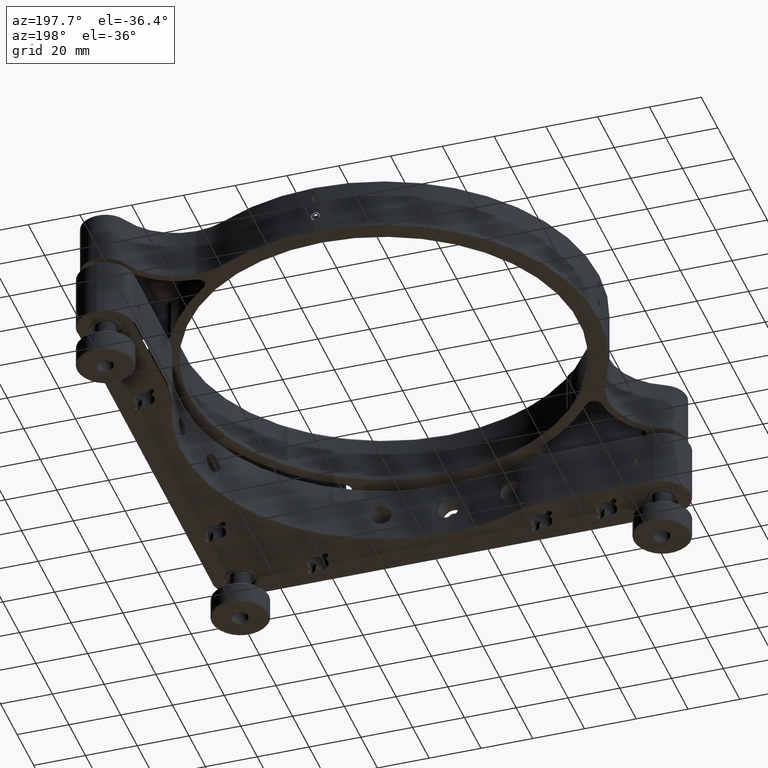
[diagram: clean part render]
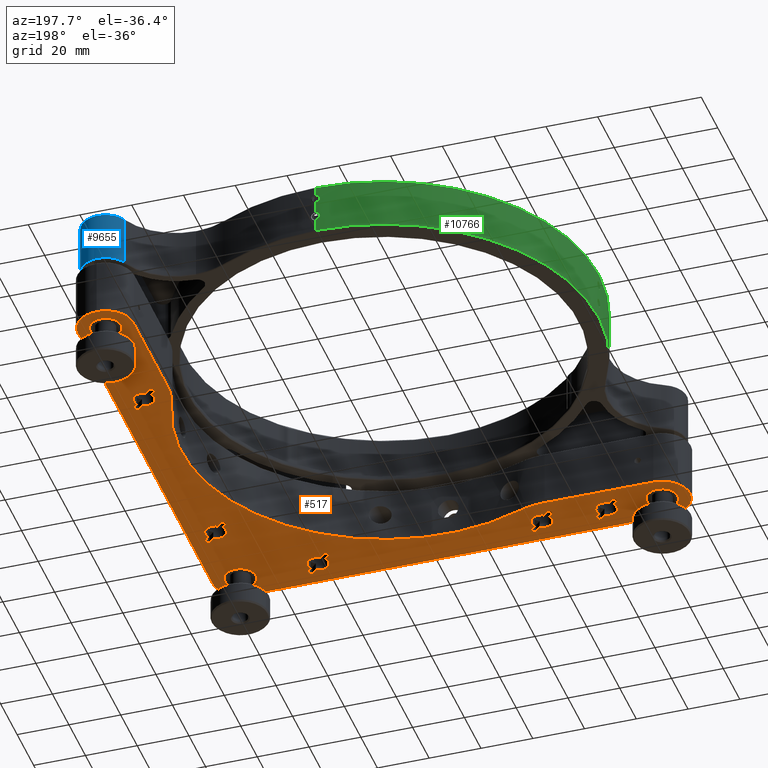
[diagram: same view with three faces highlighted in distinct colors, each labeled with its STEP entity id]
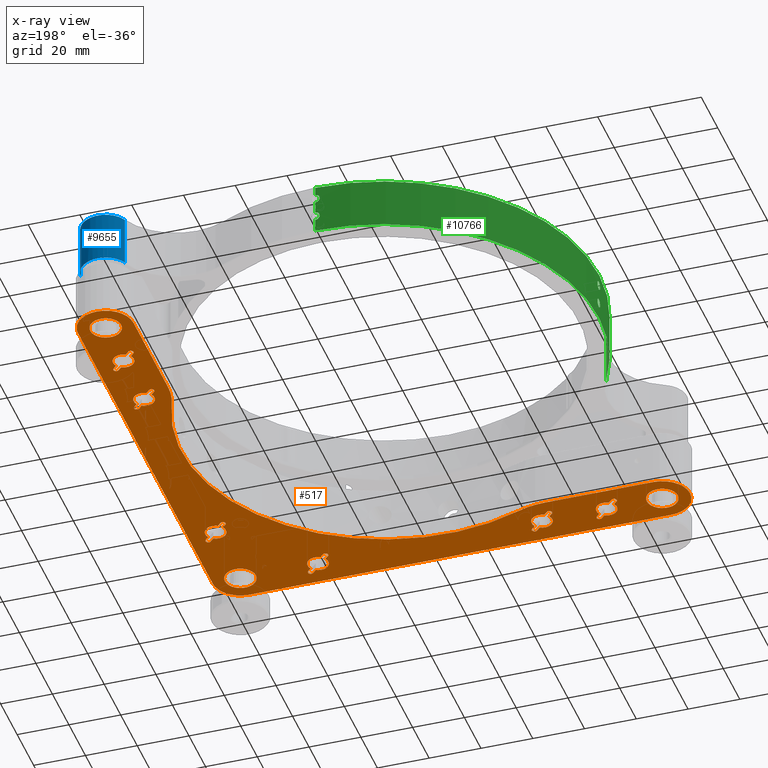
[diagram: x-ray of the same camera — body ghosted, the three highlighted faces saturated]
A machine part, auxiliary view with three faces highlighted in distinct colors.
The next image is the same camera in x-ray (body ghosted, the three faces saturated) — at least one of them is partly hidden behind the body in this view.
Their STEP definitions:

[orange] entity #517 — the highlighted planar face has unit normal (-0, 0, 1).
#14 = DIRECTION ( 'NONE',  ( 1.000000000000000000, 0.000000000000000000, 0.000000000000000000 ) ) ;
#23 = VERTEX_POINT ( 'NONE', #1847 ) ;
#32 = AXIS2_PLACEMENT_3D ( 'NONE', #8472, #5480, #1498 ) ;
#60 = VECTOR ( 'NONE', #2194, 1000.000000000000000 ) ;
#78 = DIRECTION ( 'NONE',  ( -0.7071067811865460184, 0.7071067811865490160, -0.000000000000000000 ) ) ;
#105 = CARTESIAN_POINT ( 'NONE',  ( -1.126675055215564941E-14, -92.00000000000000000, -11.00000000000000000 ) ) ;
#112 = AXIS2_PLACEMENT_3D ( 'NONE', #9817, #3949, #5887 ) ;
#117 = LINE ( 'NONE', #9943, #4166 ) ;
#120 = DIRECTION ( 'NONE',  ( -1.000000000000000000, 0.000000000000000000, 0.000000000000000000 ) ) ;
#143 = EDGE_CURVE ( 'NONE', #13025, #10785, #1864, .T. ) ;
#144 = EDGE_CURVE ( 'NONE', #7044, #7319, #3149, .T. ) ;
#184 = EDGE_CURVE ( 'NONE', #7767, #4507, #4839, .T. ) ;
#198 = VERTEX_POINT ( 'NONE', #8805 ) ;
#213 = VERTEX_POINT ( 'NONE', #12952 ) ;
#216 = LINE ( 'NONE', #414, #12917 ) ;
#229 = CARTESIAN_POINT ( 'NONE',  ( 78.07053211124521397, -46.58560787075347065, -11.00000000000000000 ) ) ;
#243 = ORIENTED_EDGE ( 'NONE', *, *, #6173, .T. ) ;
#263 = EDGE_CURVE ( 'NONE', #12680, #2368, #3779, .T. ) ;
#270 = EDGE_CURVE ( 'NONE', #11952, #2296, #11849, .T. ) ;
#286 = CIRCLE ( 'NONE', #8058, 4.000000000000000000 ) ;
#304 = VERTEX_POINT ( 'NONE', #8078 ) ;
#306 = ORIENTED_EDGE ( 'NONE', *, *, #3301, .F. ) ;
#309 = VERTEX_POINT ( 'NONE', #4001 ) ;
#323 = DIRECTION ( 'NONE',  ( 0.000000000000000000, 1.000000000000000000, 0.000000000000000000 ) ) ;
#337 = EDGE_CURVE ( 'NONE', #4315, #2716, #6248, .T. ) ;
#351 = ORIENTED_EDGE ( 'NONE', *, *, #12106, .T. ) ;
#368 = CIRCLE ( 'NONE', #7538, 1.049999999999974509 ) ;
#375 = EDGE_CURVE ( 'NONE', #9537, #4086, #3275, .T. ) ;
#402 = CARTESIAN_POINT ( 'NONE',  ( 72.86250000000008242, 28.66960226005932100, -11.00000000000000000 ) ) ;
#406 = CARTESIAN_POINT ( 'NONE',  ( 81.49999999999998579, 81.50000000000004263, -11.00000000000000000 ) ) ;
#414 = CARTESIAN_POINT ( 'NONE',  ( -0.5000000000000156541, -92.50000000000000000, -11.00000000000000000 ) ) ;
#421 = VERTEX_POINT ( 'NONE', #12227 ) ;
#453 = CARTESIAN_POINT ( 'NONE',  ( 81.50000000000000000, -81.49999999999998579, -11.00000000000000000 ) ) ;
#496 = AXIS2_PLACEMENT_3D ( 'NONE', #3380, #1657, #2582 ) ;
#517 = ADVANCED_FACE ( 'NONE', ( #631, #4660, #8459, #4527, #8526, #12544, #1548, #5586, #563, #4594 ), #2608, .F. ) ;
#524 = EDGE_CURVE ( 'NONE', #6403, #13016, #845, .T. ) ;
#529 = CIRCLE ( 'NONE', #4310, 1.049999999999974509 ) ;
#563 = FACE_BOUND ( 'NONE', #3726, .T. ) ;
#574 = CIRCLE ( 'NONE', #11104, 1.050000000000009148 ) ;
#591 = EDGE_CURVE ( 'NONE', #2296, #6533, #10036, .T. ) ;
#631 = FACE_OUTER_BOUND ( 'NONE', #3778, .T. ) ;
#646 = DIRECTION ( 'NONE',  ( 0.000000000000000000, 0.000000000000000000, -1.000000000000000000 ) ) ;
#648 = CARTESIAN_POINT ( 'NONE',  ( -39.17193000900062572, -77.32806999099933876, -11.00000000000000000 ) ) ;
#684 = AXIS2_PLACEMENT_3D ( 'NONE', #5248, #9246, #3829 ) ;
#699 = VERTEX_POINT ( 'NONE', #9751 ) ;
#704 = ORIENTED_EDGE ( 'NONE', *, *, #11034, .T. ) ;
#715 = CARTESIAN_POINT ( 'NONE',  ( -81.50000000000000000, -81.50000000000000000, -11.00000000000000000 ) ) ;
#784 = VERTEX_POINT ( 'NONE', #3626 ) ;
#787 = CARTESIAN_POINT ( 'NONE',  ( -64.17193000900061861, -77.32806999099933876, -11.00000000000000000 ) ) ;
#806 = VECTOR ( 'NONE', #3471, 1000.000000000000114 ) ;
#807 = VECTOR ( 'NONE', #11216, 1000.000000000000114 ) ;
#838 = ORIENTED_EDGE ( 'NONE', *, *, #337, .T. ) ;
#845 = CIRCLE ( 'NONE', #2525, 4.000000000000000000 ) ;
#864 = DIRECTION ( 'NONE',  ( -1.000000000000000000, 0.000000000000000000, 0.000000000000000000 ) ) ;
#872 = DIRECTION ( 'NONE',  ( 0.000000000000000000, -1.000000000000000000, 0.000000000000000000 ) ) ;
#911 = DIRECTION ( 'NONE',  ( -1.000000000000000000, 0.000000000000000000, 0.000000000000000000 ) ) ;
#919 = EDGE_CURVE ( 'NONE', #11386, #2433, #10487, .T. ) ;
#933 = CARTESIAN_POINT ( 'NONE',  ( 81.49999999999995737, 35.00000000000004263, -11.00000000000000000 ) ) ;
#947 = VERTEX_POINT ( 'NONE', #7186 ) ;
#952 = CARTESIAN_POINT ( 'NONE',  ( 81.49999999999995737, 35.00000000000004263, -11.00000000000000000 ) ) ;
#956 = ORIENTED_EDGE ( 'NONE', *, *, #1319, .F. ) ;
#996 = EDGE_CURVE ( 'NONE', #1370, #6724, #368, .T. ) ;
#1007 = VECTOR ( 'NONE', #4202, 1000.000000000000000 ) ;
#1009 = CIRCLE ( 'NONE', #1633, 4.000000000000003553 ) ;
#1075 = CARTESIAN_POINT ( 'NONE',  ( -64.91439212924652225, -78.07053211124519976, -11.00000000000000000 ) ) ;
#1076 = EDGE_CURVE ( 'NONE', #12276, #8375, #2478, .T. ) ;
#1105 = DIRECTION ( 'NONE',  ( -0.7071067811865457964, 0.7071067811865492381, 0.000000000000000000 ) ) ;
#1110 = AXIS2_PLACEMENT_3D ( 'NONE', #5638, #9643, #2594 ) ;
#1124 = DIRECTION ( 'NONE',  ( 0.000000000000000000, -1.000000000000000000, 0.000000000000000000 ) ) ;
#1218 = AXIS2_PLACEMENT_3D ( 'NONE', #453, #3479, #8848 ) ;
#1236 = DIRECTION ( 'NONE',  ( -0.000000000000000000, 0.000000000000000000, -1.000000000000000000 ) ) ;
#1240 = CARTESIAN_POINT ( 'NONE',  ( 77.50000000000000000, -51.49999999999997158, -11.00000000000000000 ) ) ;
#1256 = CARTESIAN_POINT ( 'NONE',  ( 56.41439212924649382, -84.92946788875475761, -11.00000000000000000 ) ) ;
#1278 = CARTESIAN_POINT ( 'NONE',  ( 92.50000000000000000, 0.5000000000000567324, -11.00000000000000000 ) ) ;
#1308 = CARTESIAN_POINT ( 'NONE',  ( -39.54427897939210368, -70.80000000000011084, -11.00000000000000000 ) ) ;
#1319 = EDGE_CURVE ( 'NONE', #4647, #947, #3808, .T. ) ;
#1348 = EDGE_CURVE ( 'NONE', #10140, #4662, #1645, .T. ) ;
#1370 = VERTEX_POINT ( 'NONE', #9880 ) ;
#1375 = ORIENTED_EDGE ( 'NONE', *, *, #4126, .T. ) ;
#1386 = CARTESIAN_POINT ( 'NONE',  ( -81.50000000000000000, -81.50000000000000000, -11.00000000000000000 ) ) ;
#1409 = AXIS2_PLACEMENT_3D ( 'NONE', #952, #8850, #10919 ) ;
#1418 = VECTOR ( 'NONE', #3331, 1000.000000000000000 ) ;
#1434 = ORIENTED_EDGE ( 'NONE', *, *, #591, .T. ) ;
#1443 = DIRECTION ( 'NONE',  ( 1.000000000000000000, 0.000000000000000000, 0.000000000000000000 ) ) ;
#1461 = AXIS2_PLACEMENT_3D ( 'NONE', #4062, #11985, #6055 ) ;
#1490 = ORIENTED_EDGE ( 'NONE', *, *, #10394, .F. ) ;
#1498 = DIRECTION ( 'NONE',  ( 1.000000000000000000, 3.504491870660227209E-15, 0.000000000000000000 ) ) ;
#1523 = CARTESIAN_POINT ( 'NONE',  ( 78.02829805885160397, -49.51322229934333308, -11.00000000000000000 ) ) ;
#1530 = CARTESIAN_POINT ( 'NONE',  ( -56.00000000000000711, -81.49999999999997158, -11.00000000000000000 ) ) ;
#1548 = FACE_BOUND ( 'NONE', #11294, .T. ) ;
#1551 = DIRECTION ( 'NONE',  ( 1.000000000000000000, 0.000000000000000000, 0.000000000000000000 ) ) ;
#1563 = EDGE_CURVE ( 'NONE', #7282, #4315, #8376, .T. ) ;
#1574 = CARTESIAN_POINT ( 'NONE',  ( 56.41439212924649382, -84.92946788875475761, -11.00000000000000000 ) ) ;
#1609 = DIRECTION ( 'NONE',  ( -0.000000000000000000, 0.000000000000000000, 1.000000000000000000 ) ) ;
#1611 = ORIENTED_EDGE ( 'NONE', *, *, #2620, .F. ) ;
#1626 = ORIENTED_EDGE ( 'NONE', *, *, #375, .T. ) ;
#1633 = AXIS2_PLACEMENT_3D ( 'NONE', #5541, #12823, #7700 ) ;
#1645 = CIRCLE ( 'NONE', #7965, 6.000000000000005329 ) ;
#1657 = DIRECTION ( 'NONE',  ( -0.000000000000000000, 0.000000000000000000, 1.000000000000000000 ) ) ;
#1680 = CARTESIAN_POINT ( 'NONE',  ( 92.00000000000000000, 5.212295785836140063E-14, -11.00000000000000000 ) ) ;
#1690 = ORIENTED_EDGE ( 'NONE', *, *, #5780, .T. ) ;
#1695 = ORIENTED_EDGE ( 'NONE', *, *, #8884, .T. ) ;
#1716 = CARTESIAN_POINT ( 'NONE',  ( -56.57053211124526371, -86.41439212924649382, -11.00000000000000000 ) ) ;
#1727 = CARTESIAN_POINT ( 'NONE',  ( -31.52829805885163594, -83.48677770065664561, -11.00000000000000000 ) ) ;
#1793 = DIRECTION ( 'NONE',  ( -0.000000000000000000, 0.000000000000000000, 1.000000000000000000 ) ) ;
#1809 = DIRECTION ( 'NONE',  ( -0.000000000000000000, 0.000000000000000000, 1.000000000000000000 ) ) ;
#1822 = CARTESIAN_POINT ( 'NONE',  ( -64.17193000900061861, -77.32806999099933876, -11.00000000000000000 ) ) ;
#1830 = VERTEX_POINT ( 'NONE', #9502 ) ;
#1847 = CARTESIAN_POINT ( 'NONE',  ( -58.01322229934338282, -84.97170194114838182, -11.00000000000000000 ) ) ;
#1856 = VECTOR ( 'NONE', #4555, 1000.000000000000000 ) ;
#1864 = CIRCLE ( 'NONE', #10931, 3.999999999999996447 ) ;
#1869 = ORIENTED_EDGE ( 'NONE', *, *, #7913, .T. ) ;
#1895 = CARTESIAN_POINT ( 'NONE',  ( 79.51322229934329755, 38.47170194114841735, -11.00000000000000000 ) ) ;
#1938 = ORIENTED_EDGE ( 'NONE', *, *, #4820, .T. ) ;
#1942 = VERTEX_POINT ( 'NONE', #10772 ) ;
#1945 = DIRECTION ( 'NONE',  ( 0.7071067811865457964, -0.7071067811865492381, 0.000000000000000000 ) ) ;
#1946 = EDGE_CURVE ( 'NONE', #3604, #10121, #3972, .T. ) ;
#1954 = EDGE_CURVE ( 'NONE', #6033, #1370, #12990, .T. ) ;
#1972 = ORIENTED_EDGE ( 'NONE', *, *, #3014, .F. ) ;
#1986 = AXIS2_PLACEMENT_3D ( 'NONE', #12039, #6121, #11051 ) ;
#1988 = DIRECTION ( 'NONE',  ( 0.000000000000000000, -0.000000000000000000, 1.000000000000000000 ) ) ;
#1999 = CARTESIAN_POINT ( 'NONE',  ( -40.22193000900060156, -77.32806999099933876, -11.00000000000000000 ) ) ;
#2017 = ORIENTED_EDGE ( 'NONE', *, *, #184, .F. ) ;
#2043 = VECTOR ( 'NONE', #4620, 1000.000000000000114 ) ;
#2045 = AXIS2_PLACEMENT_3D ( 'NONE', #715, #3553, #4812 ) ;
#2117 = CARTESIAN_POINT ( 'NONE',  ( 81.49999999999995737, 60.00000000000004263, -11.00000000000000000 ) ) ;
#2148 = CIRCLE ( 'NONE', #6592, 4.000000000000000000 ) ;
#2150 = VECTOR ( 'NONE', #9593, 1000.000000000000000 ) ;
#2164 = CARTESIAN_POINT ( 'NONE',  ( 70.80000000000011084, 1.661754531610481278E-14, -11.00000000000000000 ) ) ;
#2194 = DIRECTION ( 'NONE',  ( -0.7071067811865494601, 0.7071067811865454633, 0.000000000000000000 ) ) ;
#2209 = EDGE_CURVE ( 'NONE', #8375, #12276, #9386, .T. ) ;
#2217 = DIRECTION ( 'NONE',  ( 1.500301384628590126E-16, -1.000000000000000000, 0.000000000000000000 ) ) ;
#2234 = DIRECTION ( 'NONE',  ( 0.000000000000000000, 1.000000000000000000, 0.000000000000000000 ) ) ;
#2236 = CARTESIAN_POINT ( 'NONE',  ( 51.50000000000000711, -81.49999999999998579, -11.00000000000000000 ) ) ;
#2273 = VERTEX_POINT ( 'NONE', #9894 ) ;
#2296 = VERTEX_POINT ( 'NONE', #11745 ) ;
#2311 = ORIENTED_EDGE ( 'NONE', *, *, #10262, .F. ) ;
#2324 = ORIENTED_EDGE ( 'NONE', *, *, #143, .F. ) ;
#2340 = VERTEX_POINT ( 'NONE', #1716 ) ;
#2347 = ORIENTED_EDGE ( 'NONE', *, *, #9767, .T. ) ;
#2349 = ORIENTED_EDGE ( 'NONE', *, *, #11226, .T. ) ;
#2350 = CARTESIAN_POINT ( 'NONE',  ( 92.50000000000000000, -0.4999999999999519829, -11.00000000000000000 ) ) ;
#2368 = VERTEX_POINT ( 'NONE', #10885 ) ;
#2369 = LINE ( 'NONE', #4147, #7290 ) ;
#2371 = LINE ( 'NONE', #1574, #2043 ) ;
#2391 = CARTESIAN_POINT ( 'NONE',  ( -56.52829805885161107, -83.48677770065661718, -11.00000000000000000 ) ) ;
#2393 = CARTESIAN_POINT ( 'NONE',  ( -39.91439212924648672, -78.07053211124518555, -11.00000000000000000 ) ) ;
#2396 = LINE ( 'NONE', #6359, #60 ) ;
#2408 = VECTOR ( 'NONE', #12706, 1000.000000000000114 ) ;
#2428 = CARTESIAN_POINT ( 'NONE',  ( 51.50000000000000711, -81.49999999999998579, -11.00000000000000000 ) ) ;
#2433 = VERTEX_POINT ( 'NONE', #3415 ) ;
#2452 = EDGE_CURVE ( 'NONE', #3671, #2741, #6320, .T. ) ;
#2464 = DIRECTION ( 'NONE',  ( 0.000000000000000000, 1.000000000000000000, 0.000000000000000000 ) ) ;
#2478 = CIRCLE ( 'NONE', #2045, 6.000000000000005329 ) ;
#2519 = CARTESIAN_POINT ( 'NONE',  ( 86.41439212924647961, 56.57053211124530634, -11.00000000000000000 ) ) ;
#2525 = AXIS2_PLACEMENT_3D ( 'NONE', #6960, #2746, #5913 ) ;
#2526 = AXIS2_PLACEMENT_3D ( 'NONE', #2117, #5222, #1124 ) ;
#2582 = DIRECTION ( 'NONE',  ( 0.000000000000000000, 1.000000000000000000, 0.000000000000000000 ) ) ;
#2589 = CARTESIAN_POINT ( 'NONE',  ( -64.91439212924652225, -78.07053211124519976, -11.00000000000000000 ) ) ;
#2592 = VERTEX_POINT ( 'NONE', #2393 ) ;
#2594 = DIRECTION ( 'NONE',  ( -1.000000000000000000, 0.000000000000000000, 0.000000000000000000 ) ) ;
#2608 = PLANE ( 'NONE',  #6536 ) ;
#2620 = EDGE_CURVE ( 'NONE', #12640, #7218, #9151, .T. ) ;
#2645 = ORIENTED_EDGE ( 'NONE', *, *, #3412, .F. ) ;
#2646 = CARTESIAN_POINT ( 'NONE',  ( 86.41439212924650803, -54.92946788875471498, -11.00000000000000000 ) ) ;
#2672 = CARTESIAN_POINT ( 'NONE',  ( 81.50000000000000000, -51.49999999999997158, -11.00000000000000000 ) ) ;
#2709 = CIRCLE ( 'NONE', #11759, 1.050000000000009148 ) ;
#2716 = VERTEX_POINT ( 'NONE', #5705 ) ;
#2737 = ORIENTED_EDGE ( 'NONE', *, *, #9063, .T. ) ;
#2741 = VERTEX_POINT ( 'NONE', #4836 ) ;
#2746 = DIRECTION ( 'NONE',  ( -0.000000000000000000, 0.000000000000000000, -1.000000000000000000 ) ) ;
#2768 = VERTEX_POINT ( 'NONE', #5762 ) ;
#2782 = AXIS2_PLACEMENT_3D ( 'NONE', #5538, #1236, #5266 ) ;
#2785 = EDGE_CURVE ( 'NONE', #7218, #9278, #5569, .T. ) ;
#2834 = DIRECTION ( 'NONE',  ( 1.000000000000000000, 0.000000000000000000, 0.000000000000000000 ) ) ;
#2846 = CARTESIAN_POINT ( 'NONE',  ( -28.66960226005930323, -72.86250000000009663, -11.00000000000000000 ) ) ;
#2861 = ORIENTED_EDGE ( 'NONE', *, *, #10600, .F. ) ;
#2900 = CARTESIAN_POINT ( 'NONE',  ( -31.57053211124524594, -86.41439212924646540, -11.00000000000000000 ) ) ;
#2909 = ORIENTED_EDGE ( 'NONE', *, *, #1946, .T. ) ;
#2932 = EDGE_CURVE ( 'NONE', #6414, #11457, #11496, .T. ) ;
#2980 = DIRECTION ( 'NONE',  ( 0.000000000000000000, -0.000000000000000000, 1.000000000000000000 ) ) ;
#2982 = DIRECTION ( 'NONE',  ( 0.000000000000000000, 1.000000000000000000, 0.000000000000000000 ) ) ;
#2988 = CARTESIAN_POINT ( 'NONE',  ( 85.49999999999997158, 35.00000000000004263, -11.00000000000000000 ) ) ;
#3014 = EDGE_CURVE ( 'NONE', #2368, #8262, #9618, .T. ) ;
#3057 = ORIENTED_EDGE ( 'NONE', *, *, #4476, .F. ) ;
#3059 = EDGE_CURVE ( 'NONE', #10115, #784, #4627, .T. ) ;
#3073 = ORIENTED_EDGE ( 'NONE', *, *, #5473, .F. ) ;
#3102 = EDGE_CURVE ( 'NONE', #7194, #6403, #9984, .T. ) ;
#3129 = AXIS2_PLACEMENT_3D ( 'NONE', #3324, #7274, #10314 ) ;
#3138 = CARTESIAN_POINT ( 'NONE',  ( 83.48677770065667403, -54.97170194114836050, -11.00000000000000000 ) ) ;
#3149 = CIRCLE ( 'NONE', #9024, 1.049999999999988498 ) ;
#3163 = ORIENTED_EDGE ( 'NONE', *, *, #11461, .T. ) ;
#3183 = EDGE_CURVE ( 'NONE', #6724, #11952, #529, .T. ) ;
#3193 = CARTESIAN_POINT ( 'NONE',  ( -33.01322229934334729, -84.97170194114835340, -11.00000000000000000 ) ) ;
#3259 = DIRECTION ( 'NONE',  ( -0.000000000000000000, 0.000000000000000000, 1.000000000000000000 ) ) ;
#3275 = LINE ( 'NONE', #12165, #4631 ) ;
#3289 = AXIS2_PLACEMENT_3D ( 'NONE', #406, #5497, #9484 ) ;
#3298 = DIRECTION ( 'NONE',  ( 0.000000000000000000, -1.000000000000000000, 0.000000000000000000 ) ) ;
#3301 = EDGE_CURVE ( 'NONE', #421, #3921, #12718, .T. ) ;
#3306 = CARTESIAN_POINT ( 'NONE',  ( 87.50000000000000000, 81.50000000000004263, -11.00000000000000000 ) ) ;
#3324 = CARTESIAN_POINT ( 'NONE',  ( 85.67193000900061861, 30.82806999099942757, -11.00000000000000000 ) ) ;
#3331 = DIRECTION ( 'NONE',  ( -0.7071067811865445751, -0.7071067811865504593, 0.000000000000000000 ) ) ;
#3343 = VECTOR ( 'NONE', #78, 1000.000000000000227 ) ;
#3351 = DIRECTION ( 'NONE',  ( 0.7071067811865450192, -0.7071067811865500152, 0.000000000000000000 ) ) ;
#3354 = CARTESIAN_POINT ( 'NONE',  ( -36.98677770065665982, -78.02829805885160397, -11.00000000000000000 ) ) ;
#3378 = ORIENTED_EDGE ( 'NONE', *, *, #11307, .T. ) ;
#3380 = CARTESIAN_POINT ( 'NONE',  ( 81.50000000000000000, -51.49999999999997158, -11.00000000000000000 ) ) ;
#3387 = DIRECTION ( 'NONE',  ( -0.000000000000000000, 0.000000000000000000, -1.000000000000000000 ) ) ;
#3412 = EDGE_CURVE ( 'NONE', #8516, #421, #3895, .T. ) ;
#3415 = CARTESIAN_POINT ( 'NONE',  ( 77.49999999999995737, 60.00000000000004263, -11.00000000000000000 ) ) ;
#3422 = CARTESIAN_POINT ( 'NONE',  ( 77.32806999099932455, 39.17193000900066124, -11.00000000000000000 ) ) ;
#3447 = DIRECTION ( 'NONE',  ( 0.000000000000000000, 1.000000000000000000, 0.000000000000000000 ) ) ;
#3471 = DIRECTION ( 'NONE',  ( 0.7071067811865490160, -0.7071067811865460184, 0.000000000000000000 ) ) ;
#3479 = DIRECTION ( 'NONE',  ( 0.000000000000000000, 0.000000000000000000, 1.000000000000000000 ) ) ;
#3488 = CARTESIAN_POINT ( 'NONE',  ( 85.67193000900060440, 55.82806999099941692, -11.00000000000000000 ) ) ;
#3491 = LINE ( 'NONE', #10620, #1856 ) ;
#3553 = DIRECTION ( 'NONE',  ( 0.000000000000000000, 0.000000000000000000, 1.000000000000000000 ) ) ;
#3574 = VECTOR ( 'NONE', #6929, 1000.000000000000114 ) ;
#3594 = DIRECTION ( 'NONE',  ( 0.000000000000000000, -0.000000000000000000, 1.000000000000000000 ) ) ;
#3604 = VERTEX_POINT ( 'NONE', #7831 ) ;
#3610 = CARTESIAN_POINT ( 'NONE',  ( 81.49999999999998579, 81.50000000000004263, -11.00000000000000000 ) ) ;
#3618 = ORIENTED_EDGE ( 'NONE', *, *, #9617, .T. ) ;
#3626 = CARTESIAN_POINT ( 'NONE',  ( 84.97170194114836761, 58.01322229934341124, -11.00000000000000000 ) ) ;
#3639 = CARTESIAN_POINT ( 'NONE',  ( -63.42946788875473629, -76.58560787075343512, -11.00000000000000000 ) ) ;
#3650 = CIRCLE ( 'NONE', #11027, 1.049999999999974509 ) ;
#3660 = DIRECTION ( 'NONE',  ( 0.000000000000000000, -0.000000000000000000, -1.000000000000000000 ) ) ;
#3671 = VERTEX_POINT ( 'NONE', #4930 ) ;
#3705 = CIRCLE ( 'NONE', #6871, 4.000000000000010658 ) ;
#3706 = CARTESIAN_POINT ( 'NONE',  ( -39.00000000000000711, -81.49999999999997158, -11.00000000000000000 ) ) ;
#3726 = EDGE_LOOP ( 'NONE', ( #11118, #7690, #4606, #6193, #2324, #7548, #4924, #8397, #4346, #3788, #1611 ) ) ;
#3728 = AXIS2_PLACEMENT_3D ( 'NONE', #3488, #5614, #4551 ) ;
#3736 = DIRECTION ( 'NONE',  ( -0.000000000000000000, 0.000000000000000000, -1.000000000000000000 ) ) ;
#3778 = EDGE_LOOP ( 'NONE', ( #3378, #10621, #956, #4907, #3806, #7785, #1938, #8170, #3618, #4193, #704, #10557, #9647, #8146, #838, #9521, #7952, #5905 ) ) ;
#3779 = CIRCLE ( 'NONE', #1461, 1.049999999999971179 ) ;
#3788 = ORIENTED_EDGE ( 'NONE', *, *, #2785, .F. ) ;
#3806 = ORIENTED_EDGE ( 'NONE', *, *, #2452, .T. ) ;
#3808 = LINE ( 'NONE', #7898, #6495 ) ;
#3829 = DIRECTION ( 'NONE',  ( 1.000000000000000000, 0.000000000000000000, 0.000000000000000000 ) ) ;
#3848 = CIRCLE ( 'NONE', #12896, 1.049999999999988498 ) ;
#3862 = CIRCLE ( 'NONE', #8900, 6.000000000000005329 ) ;
#3863 = AXIS2_PLACEMENT_3D ( 'NONE', #5970, #9093, #12933 ) ;
#3876 = ORIENTED_EDGE ( 'NONE', *, *, #12387, .F. ) ;
#3895 = CIRCLE ( 'NONE', #5387, 4.000000000000003553 ) ;
#3909 = VERTEX_POINT ( 'NONE', #1680 ) ;
#3921 = VERTEX_POINT ( 'NONE', #10591 ) ;
#3949 = DIRECTION ( 'NONE',  ( 0.000000000000000000, -0.000000000000000000, 1.000000000000000000 ) ) ;
#3954 = ORIENTED_EDGE ( 'NONE', *, *, #9610, .F. ) ;
#3972 = LINE ( 'NONE', #8965, #12527 ) ;
#3983 = EDGE_CURVE ( 'NONE', #1942, #2340, #5025, .T. ) ;
#4001 = CARTESIAN_POINT ( 'NONE',  ( 46.58560787075350618, -78.07053211124519976, -11.00000000000000000 ) ) ;
#4035 = EDGE_LOOP ( 'NONE', ( #7422, #8580 ) ) ;
#4062 = CARTESIAN_POINT ( 'NONE',  ( -30.82806999099938849, -85.67193000900061861, -11.00000000000000000 ) ) ;
#4063 = VERTEX_POINT ( 'NONE', #1999 ) ;
#4077 = DIRECTION ( 'NONE',  ( -2.347110920353783037E-16, 1.000000000000000000, 0.000000000000000000 ) ) ;
#4086 = VERTEX_POINT ( 'NONE', #5510 ) ;
#4103 = DIRECTION ( 'NONE',  ( -0.000000000000000000, 0.000000000000000000, -1.000000000000000000 ) ) ;
#4109 = DIRECTION ( 'NONE',  ( -1.000000000000000000, 0.000000000000000000, 0.000000000000000000 ) ) ;
#4119 = CARTESIAN_POINT ( 'NONE',  ( -39.17193000900062572, -77.32806999099933876, -11.00000000000000000 ) ) ;
#4126 = EDGE_CURVE ( 'NONE', #5450, #12803, #2709, .T. ) ;
#4137 = EDGE_CURVE ( 'NONE', #11459, #304, #12587, .T. ) ;
#4147 = CARTESIAN_POINT ( 'NONE',  ( 76.58560787075342091, 63.42946788875476472, -11.00000000000000000 ) ) ;
#4161 = ORIENTED_EDGE ( 'NONE', *, *, #4699, .T. ) ;
#4163 = DIRECTION ( 'NONE',  ( 0.000000000000000000, 1.000000000000000000, 0.000000000000000000 ) ) ;
#4166 = VECTOR ( 'NONE', #1105, 1000.000000000000114 ) ;
#4193 = ORIENTED_EDGE ( 'NONE', *, *, #6936, .T. ) ;
#4202 = DIRECTION ( 'NONE',  ( -0.7071067811865492381, 0.7071067811865457964, 0.000000000000000000 ) ) ;
#4211 = EDGE_CURVE ( 'NONE', #5804, #7282, #9615, .T. ) ;
#4236 = CARTESIAN_POINT ( 'NONE',  ( 56.41439212924649382, -84.92946788875475761, -11.00000000000000000 ) ) ;
#4249 = ORIENTED_EDGE ( 'NONE', *, *, #1076, .T. ) ;
#4302 = DIRECTION ( 'NONE',  ( 1.500301384628590126E-16, -1.000000000000000000, 0.000000000000000000 ) ) ;
#4310 = AXIS2_PLACEMENT_3D ( 'NONE', #3422, #8350, #2234 ) ;
#4315 = VERTEX_POINT ( 'NONE', #12926 ) ;
#4320 = VERTEX_POINT ( 'NONE', #2988 ) ;
#4322 = DIRECTION ( 'NONE',  ( 1.000000000000000000, 0.000000000000000000, 0.000000000000000000 ) ) ;
#4325 = DIRECTION ( 'NONE',  ( -0.7071067811865492381, 0.7071067811865457964, 0.000000000000000000 ) ) ;
#4346 = ORIENTED_EDGE ( 'NONE', *, *, #9283, .F. ) ;
#4355 = CARTESIAN_POINT ( 'NONE',  ( -63.42946788875473629, -76.58560787075343512, -11.00000000000000000 ) ) ;
#4375 = VECTOR ( 'NONE', #3351, 1000.000000000000000 ) ;
#4426 = CARTESIAN_POINT ( 'NONE',  ( 48.02829805885161818, -79.51322229934332597, -11.00000000000000000 ) ) ;
#4427 = VERTEX_POINT ( 'NONE', #5344 ) ;
#4432 = AXIS2_PLACEMENT_3D ( 'NONE', #5088, #12011, #2982 ) ;
#4452 = EDGE_LOOP ( 'NONE', ( #2737, #13023, #1869, #1626, #9661, #6010, #11098, #1690, #243, #9773, #1375 ) ) ;
#4465 = CARTESIAN_POINT ( 'NONE',  ( 81.49999999999995737, 81.50000000000000000, -11.00000000000000000 ) ) ;
#4468 = CIRCLE ( 'NONE', #2782, 3.999999999999996447 ) ;
#4472 = CARTESIAN_POINT ( 'NONE',  ( -63.47170194114840314, -79.51322229934334018, -11.00000000000000000 ) ) ;
#4476 = EDGE_CURVE ( 'NONE', #7319, #8516, #2371, .T. ) ;
#4497 = EDGE_CURVE ( 'NONE', #4086, #10115, #4580, .T. ) ;
#4507 = VERTEX_POINT ( 'NONE', #4426 ) ;
#4515 = VECTOR ( 'NONE', #4302, 1000.000000000000000 ) ;
#4527 = FACE_BOUND ( 'NONE', #9002, .T. ) ;
#4529 = VERTEX_POINT ( 'NONE', #9544 ) ;
#4542 = EDGE_CURVE ( 'NONE', #8929, #5450, #574, .T. ) ;
#4551 = DIRECTION ( 'NONE',  ( 0.000000000000000000, 1.000000000000000000, 0.000000000000000000 ) ) ;
#4555 = DIRECTION ( 'NONE',  ( -0.7071067811865494601, 0.7071067811865454633, 0.000000000000000000 ) ) ;
#4569 = EDGE_CURVE ( 'NONE', #304, #9271, #11060, .T. ) ;
#4572 = VERTEX_POINT ( 'NONE', #13028 ) ;
#4579 = DIRECTION ( 'NONE',  ( 1.000000000000000000, -2.803593496528180190E-15, 0.000000000000000000 ) ) ;
#4580 = CIRCLE ( 'NONE', #3728, 1.050000000000009148 ) ;
#4594 = FACE_BOUND ( 'NONE', #4035, .T. ) ;
#4601 = LINE ( 'NONE', #2350, #4375 ) ;
#4606 = ORIENTED_EDGE ( 'NONE', *, *, #3983, .F. ) ;
#4609 = CARTESIAN_POINT ( 'NONE',  ( 84.92946788875477182, -56.41439212924645830, -11.00000000000000000 ) ) ;
#4612 = CARTESIAN_POINT ( 'NONE',  ( 47.32806999099938139, -77.32806999099935297, -11.00000000000000000 ) ) ;
#4620 = DIRECTION ( 'NONE',  ( 0.7071067811865460184, -0.7071067811865489050, -0.000000000000000000 ) ) ;
#4627 = LINE ( 'NONE', #7650, #6842 ) ;
#4631 = VECTOR ( 'NONE', #7171, 1000.000000000000000 ) ;
#4647 = VERTEX_POINT ( 'NONE', #105 ) ;
#4660 = FACE_BOUND ( 'NONE', #4452, .T. ) ;
#4662 = VERTEX_POINT ( 'NONE', #6252 ) ;
#4667 = CARTESIAN_POINT ( 'NONE',  ( 81.49999999999995737, 92.19999999999991758, -11.00000000000000000 ) ) ;
#4697 = CARTESIAN_POINT ( 'NONE',  ( 77.32806999099936718, -47.32806999099934586, -11.00000000000000000 ) ) ;
#4699 = EDGE_CURVE ( 'NONE', #699, #11459, #7301, .T. ) ;
#4707 = DIRECTION ( 'NONE',  ( 0.000000000000000000, -0.000000000000000000, -1.000000000000000000 ) ) ;
#4718 = VECTOR ( 'NONE', #4322, 1000.000000000000000 ) ;
#4732 = AXIS2_PLACEMENT_3D ( 'NONE', #2672, #1809, #11704 ) ;
#4776 = EDGE_CURVE ( 'NONE', #3909, #8813, #4601, .T. ) ;
#4812 = DIRECTION ( 'NONE',  ( 1.000000000000000000, 0.000000000000000000, 0.000000000000000000 ) ) ;
#4820 = EDGE_CURVE ( 'NONE', #10469, #4572, #5005, .T. ) ;
#4824 = CARTESIAN_POINT ( 'NONE',  ( 78.07053211124518555, 64.91439212924655067, -11.00000000000000000 ) ) ;
#4836 = CARTESIAN_POINT ( 'NONE',  ( -81.50000000000000000, -92.19999999999991758, -11.00000000000000000 ) ) ;
#4839 = CIRCLE ( 'NONE', #12397, 4.000000000000003553 ) ;
#4858 = ORIENTED_EDGE ( 'NONE', *, *, #8233, .T. ) ;
#4875 = DIRECTION ( 'NONE',  ( 0.000000000000000000, 0.000000000000000000, 1.000000000000000000 ) ) ;
#4904 = DIRECTION ( 'NONE',  ( -0.7071067811865492381, 0.7071067811865457964, 0.000000000000000000 ) ) ;
#4907 = ORIENTED_EDGE ( 'NONE', *, *, #10751, .F. ) ;
#4908 = CIRCLE ( 'NONE', #7440, 29.69999999999992468 ) ;
#4916 = CARTESIAN_POINT ( 'NONE',  ( -55.82806999099938139, -85.67193000900061861, -11.00000000000000000 ) ) ;
#4924 = ORIENTED_EDGE ( 'NONE', *, *, #12127, .F. ) ;
#4925 = CIRCLE ( 'NONE', #7455, 4.000000000000003553 ) ;
#4930 = CARTESIAN_POINT ( 'NONE',  ( -0.1999999999999353129, -92.19999999999991758, -11.00000000000000000 ) ) ;
#4932 = DIRECTION ( 'NONE',  ( 0.7071067811865502373, -0.7071067811865447972, -0.000000000000000000 ) ) ;
#4945 = CARTESIAN_POINT ( 'NONE',  ( 77.49999999999995737, 35.00000000000004263, -11.00000000000000000 ) ) ;
#4964 = CARTESIAN_POINT ( 'NONE',  ( 49.51322229934336860, -78.02829805885158976, -11.00000000000000000 ) ) ;
#4969 = CARTESIAN_POINT ( 'NONE',  ( 84.92946788875477182, -56.41439212924645830, -11.00000000000000000 ) ) ;
#5002 = AXIS2_PLACEMENT_3D ( 'NONE', #7806, #7549, #8701 ) ;
#5005 = CIRCLE ( 'NONE', #11748, 10.69999999999991758 ) ;
#5019 = VERTEX_POINT ( 'NONE', #3138 ) ;
#5025 = CIRCLE ( 'NONE', #5236, 1.050000000000009148 ) ;
#5041 = CARTESIAN_POINT ( 'NONE',  ( 86.41439212924645119, 31.57053211124528858, -11.00000000000000000 ) ) ;
#5067 = CARTESIAN_POINT ( 'NONE',  ( 84.92946788875475761, 30.08560787075356657, -11.00000000000000000 ) ) ;
#5078 = LINE ( 'NONE', #2164, #10912 ) ;
#5088 = CARTESIAN_POINT ( 'NONE',  ( 81.50000000000000000, -51.49999999999997158, -11.00000000000000000 ) ) ;
#5136 = CARTESIAN_POINT ( 'NONE',  ( -64.00000000000000000, -81.49999999999997158, -11.00000000000000000 ) ) ;
#5153 = EDGE_CURVE ( 'NONE', #2716, #3909, #8517, .T. ) ;
#5182 = VECTOR ( 'NONE', #4904, 1000.000000000000000 ) ;
#5195 = VERTEX_POINT ( 'NONE', #9375 ) ;
#5212 = EDGE_LOOP ( 'NONE', ( #11857, #6971 ) ) ;
#5222 = DIRECTION ( 'NONE',  ( 0.000000000000000000, -0.000000000000000000, 1.000000000000000000 ) ) ;
#5236 = AXIS2_PLACEMENT_3D ( 'NONE', #4916, #9100, #4109 ) ;
#5237 = DIRECTION ( 'NONE',  ( 1.000000000000000000, 0.000000000000000000, 0.000000000000000000 ) ) ;
#5243 = CARTESIAN_POINT ( 'NONE',  ( 77.32806999099932455, 64.17193000900064703, -11.00000000000000000 ) ) ;
#5248 = CARTESIAN_POINT ( 'NONE',  ( -35.00000000000000711, -81.49999999999997158, -11.00000000000000000 ) ) ;
#5251 = VECTOR ( 'NONE', #1945, 1000.000000000000114 ) ;
#5266 = DIRECTION ( 'NONE',  ( 1.000000000000000000, 0.000000000000000000, 0.000000000000000000 ) ) ;
#5338 = VERTEX_POINT ( 'NONE', #4969 ) ;
#5344 = CARTESIAN_POINT ( 'NONE',  ( 53.48677770065665982, -84.97170194114839603, -11.00000000000000000 ) ) ;
#5348 = CARTESIAN_POINT ( 'NONE',  ( 81.49999999999995737, 60.00000000000004263, -11.00000000000000000 ) ) ;
#5369 = CIRCLE ( 'NONE', #5799, 10.69999999999991758 ) ;
#5371 = CARTESIAN_POINT ( 'NONE',  ( -60.00000000000000711, -81.49999999999997158, -11.00000000000000000 ) ) ;
#5387 = AXIS2_PLACEMENT_3D ( 'NONE', #2236, #10282, #120 ) ;
#5439 = EDGE_CURVE ( 'NONE', #6533, #699, #7324, .T. ) ;
#5450 = VERTEX_POINT ( 'NONE', #7201 ) ;
#5471 = ORIENTED_EDGE ( 'NONE', *, *, #4137, .T. ) ;
#5473 = EDGE_CURVE ( 'NONE', #3921, #12213, #7338, .T. ) ;
#5480 = DIRECTION ( 'NONE',  ( 0.000000000000000000, -0.000000000000000000, -1.000000000000000000 ) ) ;
#5495 = CIRCLE ( 'NONE', #2526, 4.000000000000003553 ) ;
#5497 = DIRECTION ( 'NONE',  ( -0.000000000000000000, -0.000000000000000000, -1.000000000000000000 ) ) ;
#5501 = DIRECTION ( 'NONE',  ( 0.000000000000000000, 0.000000000000000000, 1.000000000000000000 ) ) ;
#5510 = CARTESIAN_POINT ( 'NONE',  ( 84.92946788875471498, 55.08560787075352749, -11.00000000000000000 ) ) ;
#5538 = CARTESIAN_POINT ( 'NONE',  ( -60.00000000000000711, -81.49999999999997158, -11.00000000000000000 ) ) ;
#5541 = CARTESIAN_POINT ( 'NONE',  ( 81.49999999999995737, 60.00000000000004263, -11.00000000000000000 ) ) ;
#5548 = CIRCLE ( 'NONE', #10374, 4.000000000000003553 ) ;
#5555 = CIRCLE ( 'NONE', #10165, 1.049999999999988498 ) ;
#5567 = EDGE_CURVE ( 'NONE', #2768, #5804, #5078, .T. ) ;
#5569 = LINE ( 'NONE', #2589, #11913 ) ;
#5586 = FACE_BOUND ( 'NONE', #12864, .T. ) ;
#5593 = EDGE_CURVE ( 'NONE', #4507, #309, #117, .T. ) ;
#5601 = LINE ( 'NONE', #4609, #2150 ) ;
#5614 = DIRECTION ( 'NONE',  ( -0.000000000000000000, 0.000000000000000000, 1.000000000000000000 ) ) ;
#5638 = CARTESIAN_POINT ( 'NONE',  ( 55.67193000900062572, -85.67193000900063282, -11.00000000000000000 ) ) ;
#5688 = CARTESIAN_POINT ( 'NONE',  ( -87.50000000000001421, -81.50000000000000000, -11.00000000000000000 ) ) ;
#5705 = CARTESIAN_POINT ( 'NONE',  ( 92.19999999999990337, 0.1999999999999623190, -11.00000000000000000 ) ) ;
#5737 = VERTEX_POINT ( 'NONE', #1240 ) ;
#5742 = ORIENTED_EDGE ( 'NONE', *, *, #5593, .F. ) ;
#5762 = CARTESIAN_POINT ( 'NONE',  ( 70.80000000000011084, 39.54427897939211789, -11.00000000000000000 ) ) ;
#5780 = EDGE_CURVE ( 'NONE', #4529, #11840, #1009, .T. ) ;
#5799 = AXIS2_PLACEMENT_3D ( 'NONE', #6145, #8296, #12313 ) ;
#5804 = VERTEX_POINT ( 'NONE', #5866 ) ;
#5810 = AXIS2_PLACEMENT_3D ( 'NONE', #787, #8930, #911 ) ;
#5835 = DIRECTION ( 'NONE',  ( 0.000000000000000000, 1.000000000000000000, 0.000000000000000000 ) ) ;
#5858 = DIRECTION ( 'NONE',  ( -1.000000000000000000, 0.000000000000000000, 0.000000000000000000 ) ) ;
#5866 = CARTESIAN_POINT ( 'NONE',  ( 70.80000000000009663, 81.50000000000000000, -11.00000000000000000 ) ) ;
#5871 = EDGE_LOOP ( 'NONE', ( #4249, #12395 ) ) ;
#5875 = DIRECTION ( 'NONE',  ( 1.000000000000000000, 0.000000000000000000, 0.000000000000000000 ) ) ;
#5887 = DIRECTION ( 'NONE',  ( 0.000000000000000000, -1.000000000000000000, 0.000000000000000000 ) ) ;
#5905 = ORIENTED_EDGE ( 'NONE', *, *, #10748, .T. ) ;
#5913 = DIRECTION ( 'NONE',  ( 1.000000000000000000, 0.000000000000000000, 0.000000000000000000 ) ) ;
#5921 = DIRECTION ( 'NONE',  ( 0.000000000000000000, 0.000000000000000000, -1.000000000000000000 ) ) ;
#5970 = CARTESIAN_POINT ( 'NONE',  ( 47.32806999099938139, -77.32806999099935297, -11.00000000000000000 ) ) ;
#5993 = ORIENTED_EDGE ( 'NONE', *, *, #6662, .F. ) ;
#6010 = ORIENTED_EDGE ( 'NONE', *, *, #3059, .T. ) ;
#6033 = VERTEX_POINT ( 'NONE', #1895 ) ;
#6055 = DIRECTION ( 'NONE',  ( -1.000000000000000000, 0.000000000000000000, 0.000000000000000000 ) ) ;
#6089 = EDGE_CURVE ( 'NONE', #10785, #1942, #10124, .T. ) ;
#6121 = DIRECTION ( 'NONE',  ( 0.000000000000000000, -0.000000000000000000, -1.000000000000000000 ) ) ;
#6145 = CARTESIAN_POINT ( 'NONE',  ( -81.50000000000000000, -81.50000000000000000, -11.00000000000000000 ) ) ;
#6152 = CIRCLE ( 'NONE', #9067, 1.049999999999988498 ) ;
#6165 = CARTESIAN_POINT ( 'NONE',  ( 76.58560787075342091, 63.42946788875476472, -11.00000000000000000 ) ) ;
#6173 = EDGE_CURVE ( 'NONE', #11840, #8929, #6680, .T. ) ;
#6193 = ORIENTED_EDGE ( 'NONE', *, *, #6089, .F. ) ;
#6220 = ORIENTED_EDGE ( 'NONE', *, *, #10830, .T. ) ;
#6225 = CARTESIAN_POINT ( 'NONE',  ( -38.42946788875477182, -76.58560787075347775, -11.00000000000000000 ) ) ;
#6248 = LINE ( 'NONE', #11311, #11583 ) ;
#6252 = CARTESIAN_POINT ( 'NONE',  ( 75.50000000000000000, -81.49999999999998579, -11.00000000000000000 ) ) ;
#6257 = ORIENTED_EDGE ( 'NONE', *, *, #263, .F. ) ;
#6290 = DIRECTION ( 'NONE',  ( 1.000000000000000000, 0.000000000000000000, 0.000000000000000000 ) ) ;
#6320 = LINE ( 'NONE', #7379, #10647 ) ;
#6338 = ORIENTED_EDGE ( 'NONE', *, *, #4569, .T. ) ;
#6340 = AXIS2_PLACEMENT_3D ( 'NONE', #10356, #12381, #11475 ) ;
#6359 = CARTESIAN_POINT ( 'NONE',  ( 86.41439212924650803, -54.92946788875471498, -11.00000000000000000 ) ) ;
#6403 = VERTEX_POINT ( 'NONE', #12196 ) ;
#6414 = VERTEX_POINT ( 'NONE', #3306 ) ;
#6461 = DIRECTION ( 'NONE',  ( -0.000000000000000000, -0.000000000000000000, -1.000000000000000000 ) ) ;
#6476 = EDGE_CURVE ( 'NONE', #784, #4529, #5495, .T. ) ;
#6495 = VECTOR ( 'NONE', #4932, 1000.000000000000000 ) ;
#6517 = LINE ( 'NONE', #9662, #8378 ) ;
#6533 = VERTEX_POINT ( 'NONE', #4945 ) ;
#6536 = AXIS2_PLACEMENT_3D ( 'NONE', #6630, #1609, #11778 ) ;
#6552 = EDGE_CURVE ( 'NONE', #10013, #947, #7972, .T. ) ;
#6588 = DIRECTION ( 'NONE',  ( 0.000000000000000000, 0.000000000000000000, -1.000000000000000000 ) ) ;
#6592 = AXIS2_PLACEMENT_3D ( 'NONE', #933, #2980, #872 ) ;
#6630 = CARTESIAN_POINT ( 'NONE',  ( 0.000000000000000000, 0.000000000000000000, -11.00000000000000000 ) ) ;
#6662 = EDGE_CURVE ( 'NONE', #2273, #2592, #8686, .T. ) ;
#6680 = LINE ( 'NONE', #8405, #8809 ) ;
#6720 = DIRECTION ( 'NONE',  ( 0.000000000000000000, 0.000000000000000000, -1.000000000000000000 ) ) ;
#6724 = VERTEX_POINT ( 'NONE', #7128 ) ;
#6815 = CARTESIAN_POINT ( 'NONE',  ( 77.32806999099936718, -47.32806999099934586, -11.00000000000000000 ) ) ;
#6817 = CARTESIAN_POINT ( 'NONE',  ( -39.54427897939210368, -100.5000000000000284, -11.00000000000000000 ) ) ;
#6821 = CIRCLE ( 'NONE', #3863, 1.049999999999988498 ) ;
#6829 = CARTESIAN_POINT ( 'NONE',  ( 75.49999999999998579, 81.50000000000004263, -11.00000000000000000 ) ) ;
#6842 = VECTOR ( 'NONE', #11674, 1000.000000000000000 ) ;
#6871 = AXIS2_PLACEMENT_3D ( 'NONE', #9138, #7246, #10350 ) ;
#6929 = DIRECTION ( 'NONE',  ( -0.7071067811865460184, 0.7071067811865489050, 0.000000000000000000 ) ) ;
#6936 = EDGE_CURVE ( 'NONE', #7718, #7887, #10961, .T. ) ;
#6960 = CARTESIAN_POINT ( 'NONE',  ( -35.00000000000000711, -81.49999999999997158, -11.00000000000000000 ) ) ;
#6971 = ORIENTED_EDGE ( 'NONE', *, *, #12751, .T. ) ;
#6977 = DIRECTION ( 'NONE',  ( 0.7071067811865490160, -0.7071067811865460184, 0.000000000000000000 ) ) ;
#6991 = ORIENTED_EDGE ( 'NONE', *, *, #3183, .T. ) ;
#7034 = EDGE_CURVE ( 'NONE', #10016, #8728, #3491, .T. ) ;
#7044 = VERTEX_POINT ( 'NONE', #10744 ) ;
#7105 = CARTESIAN_POINT ( 'NONE',  ( 81.50000000000000000, -81.49999999999998579, -11.00000000000000000 ) ) ;
#7128 = CARTESIAN_POINT ( 'NONE',  ( 76.27806999099935581, 39.17193000900066124, -11.00000000000000000 ) ) ;
#7135 = VECTOR ( 'NONE', #9348, 1000.000000000000114 ) ;
#7171 = DIRECTION ( 'NONE',  ( 0.7071067811865494601, -0.7071067811865454633, 0.000000000000000000 ) ) ;
#7182 = DIRECTION ( 'NONE',  ( 0.000000000000000000, 0.000000000000000000, -1.000000000000000000 ) ) ;
#7186 = CARTESIAN_POINT ( 'NONE',  ( 0.2000000000000237699, -92.20000000000003126, -11.00000000000000000 ) ) ;
#7194 = VERTEX_POINT ( 'NONE', #3354 ) ;
#7201 = CARTESIAN_POINT ( 'NONE',  ( 76.27806999099931318, 64.17193000900064703, -11.00000000000000000 ) ) ;
#7218 = VERTEX_POINT ( 'NONE', #4472 ) ;
#7246 = DIRECTION ( 'NONE',  ( -0.000000000000000000, 0.000000000000000000, 1.000000000000000000 ) ) ;
#7274 = DIRECTION ( 'NONE',  ( -0.000000000000000000, 0.000000000000000000, 1.000000000000000000 ) ) ;
#7282 = VERTEX_POINT ( 'NONE', #4667 ) ;
#7289 = CARTESIAN_POINT ( 'NONE',  ( 0.000000000000000000, -70.80000000000005400, -11.00000000000000000 ) ) ;
#7290 = VECTOR ( 'NONE', #8427, 1000.000000000000000 ) ;
#7294 = EDGE_CURVE ( 'NONE', #13016, #12680, #6517, .T. ) ;
#7301 = LINE ( 'NONE', #11316, #806 ) ;
#7319 = VERTEX_POINT ( 'NONE', #8596 ) ;
#7324 = CIRCLE ( 'NONE', #7962, 4.000000000000000000 ) ;
#7327 = LINE ( 'NONE', #4355, #7135 ) ;
#7338 = LINE ( 'NONE', #4236, #807 ) ;
#7342 = AXIS2_PLACEMENT_3D ( 'NONE', #1822, #5921, #5858 ) ;
#7345 = CARTESIAN_POINT ( 'NONE',  ( 79.51322229934332597, 63.47170194114843156, -11.00000000000000000 ) ) ;
#7379 = CARTESIAN_POINT ( 'NONE',  ( -0.000000000000000000, -92.19999999999991758, -11.00000000000000000 ) ) ;
#7422 = ORIENTED_EDGE ( 'NONE', *, *, #10133, .F. ) ;
#7424 = DIRECTION ( 'NONE',  ( -1.000000000000000000, 0.000000000000000000, 0.000000000000000000 ) ) ;
#7440 = AXIS2_PLACEMENT_3D ( 'NONE', #6817, #4707, #4579 ) ;
#7455 = AXIS2_PLACEMENT_3D ( 'NONE', #9314, #10252, #7424 ) ;
#7464 = EDGE_CURVE ( 'NONE', #5195, #8417, #12176, .T. ) ;
#7476 = CARTESIAN_POINT ( 'NONE',  ( -60.00000000000000711, -81.49999999999997158, -11.00000000000000000 ) ) ;
#7479 = AXIS2_PLACEMENT_3D ( 'NONE', #4119, #10988, #9114 ) ;
#7497 = DIRECTION ( 'NONE',  ( 0.000000000000000000, -0.000000000000000000, -1.000000000000000000 ) ) ;
#7516 = DIRECTION ( 'NONE',  ( 0.000000000000000000, 1.000000000000000000, 0.000000000000000000 ) ) ;
#7538 = AXIS2_PLACEMENT_3D ( 'NONE', #11404, #8485, #323 ) ;
#7548 = ORIENTED_EDGE ( 'NONE', *, *, #11065, .F. ) ;
#7549 = DIRECTION ( 'NONE',  ( 0.000000000000000000, -0.000000000000000000, -1.000000000000000000 ) ) ;
#7591 = VECTOR ( 'NONE', #864, 1000.000000000000000 ) ;
#7593 = CARTESIAN_POINT ( 'NONE',  ( -31.57053211124524594, -86.41439212924646540, -11.00000000000000000 ) ) ;
#7616 = VERTEX_POINT ( 'NONE', #229 ) ;
#7618 = CARTESIAN_POINT ( 'NONE',  ( 76.27806999099938423, -47.32806999099934586, -11.00000000000000000 ) ) ;
#7650 = CARTESIAN_POINT ( 'NONE',  ( 78.07053211124518555, 64.91439212924655067, -11.00000000000000000 ) ) ;
#7655 = CARTESIAN_POINT ( 'NONE',  ( 81.49999999999998579, -92.20000000000001705, -11.00000000000000000 ) ) ;
#7659 = CIRCLE ( 'NONE', #496, 4.000000000000010658 ) ;
#7682 = EDGE_CURVE ( 'NONE', #8262, #9620, #8874, .T. ) ;
#7689 = DIRECTION ( 'NONE',  ( 1.000000000000000000, 0.000000000000000000, 0.000000000000000000 ) ) ;
#7690 = ORIENTED_EDGE ( 'NONE', *, *, #12834, .F. ) ;
#7700 = DIRECTION ( 'NONE',  ( 0.000000000000000000, -1.000000000000000000, 0.000000000000000000 ) ) ;
#7718 = VERTEX_POINT ( 'NONE', #2846 ) ;
#7732 = DIRECTION ( 'NONE',  ( -0.7071067811865460184, 0.7071067811865490160, -0.000000000000000000 ) ) ;
#7767 = VERTEX_POINT ( 'NONE', #9508 ) ;
#7774 = DIRECTION ( 'NONE',  ( -1.000000000000000000, 0.000000000000000000, 0.000000000000000000 ) ) ;
#7785 = ORIENTED_EDGE ( 'NONE', *, *, #12191, .T. ) ;
#7806 = CARTESIAN_POINT ( 'NONE',  ( 81.50000000000001421, 81.50000000000000000, -11.00000000000000000 ) ) ;
#7808 = DIRECTION ( 'NONE',  ( 0.7071067811865492381, -0.7071067811865457964, 0.000000000000000000 ) ) ;
#7822 = CARTESIAN_POINT ( 'NONE',  ( -81.50000000000000000, -81.50000000000002842, -11.00000000000000000 ) ) ;
#7831 = CARTESIAN_POINT ( 'NONE',  ( 76.58560787075349197, -48.07053211124522107, -11.00000000000000000 ) ) ;
#7839 = EDGE_CURVE ( 'NONE', #4320, #6033, #2148, .T. ) ;
#7887 = VERTEX_POINT ( 'NONE', #402 ) ;
#7898 = CARTESIAN_POINT ( 'NONE',  ( 0.4999999999999930611, -92.50000000000000000, -11.00000000000000000 ) ) ;
#7913 = EDGE_CURVE ( 'NONE', #2433, #9537, #5548, .T. ) ;
#7952 = ORIENTED_EDGE ( 'NONE', *, *, #4776, .T. ) ;
#7962 = AXIS2_PLACEMENT_3D ( 'NONE', #11029, #1988, #11282 ) ;
#7965 = AXIS2_PLACEMENT_3D ( 'NONE', #7105, #4875, #5875 ) ;
#7972 = LINE ( 'NONE', #8749, #7591 ) ;
#7986 = VECTOR ( 'NONE', #6977, 1000.000000000000114 ) ;
#8029 = CARTESIAN_POINT ( 'NONE',  ( -35.00000000000000711, -81.49999999999997158, -11.00000000000000000 ) ) ;
#8052 = CIRCLE ( 'NONE', #1110, 1.049999999999988498 ) ;
#8058 = AXIS2_PLACEMENT_3D ( 'NONE', #8906, #4103, #14 ) ;
#8078 = CARTESIAN_POINT ( 'NONE',  ( 86.41439212924645119, 31.57053211124528858, -11.00000000000000000 ) ) ;
#8146 = ORIENTED_EDGE ( 'NONE', *, *, #1563, .T. ) ;
#8170 = ORIENTED_EDGE ( 'NONE', *, *, #10434, .T. ) ;
#8194 = LINE ( 'NONE', #1075, #3343 ) ;
#8233 = EDGE_CURVE ( 'NONE', #1830, #7616, #2396, .T. ) ;
#8262 = VERTEX_POINT ( 'NONE', #3193 ) ;
#8264 = LINE ( 'NONE', #7289, #4718 ) ;
#8269 = ORIENTED_EDGE ( 'NONE', *, *, #524, .F. ) ;
#8295 = AXIS2_PLACEMENT_3D ( 'NONE', #2428, #7182, #11196 ) ;
#8296 = DIRECTION ( 'NONE',  ( 0.000000000000000000, -0.000000000000000000, -1.000000000000000000 ) ) ;
#8347 = DIRECTION ( 'NONE',  ( -0.7071067811865457964, 0.7071067811865492381, 0.000000000000000000 ) ) ;
#8350 = DIRECTION ( 'NONE',  ( -0.000000000000000000, 0.000000000000000000, 1.000000000000000000 ) ) ;
#8375 = VERTEX_POINT ( 'NONE', #12600 ) ;
#8376 = CIRCLE ( 'NONE', #8578, 10.69999999999991758 ) ;
#8378 = VECTOR ( 'NONE', #12552, 1000.000000000000000 ) ;
#8381 = DIRECTION ( 'NONE',  ( 0.7071067811865502373, 0.7071067811865447972, 0.000000000000000000 ) ) ;
#8397 = ORIENTED_EDGE ( 'NONE', *, *, #7464, .F. ) ;
#8405 = CARTESIAN_POINT ( 'NONE',  ( 78.07053211124518555, 64.91439212924655067, -11.00000000000000000 ) ) ;
#8417 = VERTEX_POINT ( 'NONE', #3639 ) ;
#8427 = DIRECTION ( 'NONE',  ( 0.7071067811865494601, -0.7071067811865454633, 0.000000000000000000 ) ) ;
#8439 = VERTEX_POINT ( 'NONE', #10769 ) ;
#8459 = FACE_BOUND ( 'NONE', #9034, .T. ) ;
#8466 = EDGE_CURVE ( 'NONE', #11557, #3604, #5555, .T. ) ;
#8468 = DIRECTION ( 'NONE',  ( -1.000000000000000000, 0.000000000000000000, 0.000000000000000000 ) ) ;
#8472 = CARTESIAN_POINT ( 'NONE',  ( 100.5000000000000142, 39.54427897939212500, -11.00000000000000000 ) ) ;
#8485 = DIRECTION ( 'NONE',  ( -0.000000000000000000, 0.000000000000000000, 1.000000000000000000 ) ) ;
#8502 = CIRCLE ( 'NONE', #4732, 4.000000000000010658 ) ;
#8516 = VERTEX_POINT ( 'NONE', #4964 ) ;
#8517 = LINE ( 'NONE', #1278, #1418 ) ;
#8526 = FACE_BOUND ( 'NONE', #5212, .T. ) ;
#8544 = DIRECTION ( 'NONE',  ( 0.000000000000000000, -1.000000000000000000, 0.000000000000000000 ) ) ;
#8547 = CARTESIAN_POINT ( 'NONE',  ( 84.97170194114833919, 33.01322229934338992, -11.00000000000000000 ) ) ;
#8578 = AXIS2_PLACEMENT_3D ( 'NONE', #4465, #7497, #1551 ) ;
#8580 = ORIENTED_EDGE ( 'NONE', *, *, #2932, .F. ) ;
#8596 = CARTESIAN_POINT ( 'NONE',  ( 48.07053211124525660, -76.58560787075347775, -11.00000000000000000 ) ) ;
#8616 = LINE ( 'NONE', #12641, #12366 ) ;
#8686 = LINE ( 'NONE', #2900, #3574 ) ;
#8701 = DIRECTION ( 'NONE',  ( 1.000000000000000000, 0.000000000000000000, 0.000000000000000000 ) ) ;
#8716 = AXIS2_PLACEMENT_3D ( 'NONE', #8029, #13034, #2834 ) ;
#8728 = VERTEX_POINT ( 'NONE', #10625 ) ;
#8749 = CARTESIAN_POINT ( 'NONE',  ( -0.000000000000000000, -92.20000000000003126, -11.00000000000000000 ) ) ;
#8777 = CIRCLE ( 'NONE', #1218, 6.000000000000005329 ) ;
#8780 = CARTESIAN_POINT ( 'NONE',  ( 84.92946788875475761, 30.08560787075356657, -11.00000000000000000 ) ) ;
#8805 = CARTESIAN_POINT ( 'NONE',  ( 85.50000000000000000, -51.49999999999997158, -11.00000000000000000 ) ) ;
#8809 = VECTOR ( 'NONE', #4325, 1000.000000000000000 ) ;
#8813 = VERTEX_POINT ( 'NONE', #12516 ) ;
#8822 = ORIENTED_EDGE ( 'NONE', *, *, #3102, .F. ) ;
#8848 = DIRECTION ( 'NONE',  ( 1.000000000000000000, 0.000000000000000000, 0.000000000000000000 ) ) ;
#8850 = DIRECTION ( 'NONE',  ( 0.000000000000000000, -0.000000000000000000, 1.000000000000000000 ) ) ;
#8874 = CIRCLE ( 'NONE', #684, 4.000000000000000000 ) ;
#8884 = EDGE_CURVE ( 'NONE', #9271, #4320, #8943, .T. ) ;
#8900 = AXIS2_PLACEMENT_3D ( 'NONE', #3610, #6461, #8544 ) ;
#8906 = CARTESIAN_POINT ( 'NONE',  ( -35.00000000000000711, -81.49999999999997158, -11.00000000000000000 ) ) ;
#8929 = VERTEX_POINT ( 'NONE', #4824 ) ;
#8930 = DIRECTION ( 'NONE',  ( 0.000000000000000000, 0.000000000000000000, -1.000000000000000000 ) ) ;
#8943 = CIRCLE ( 'NONE', #112, 4.000000000000000000 ) ;
#8965 = CARTESIAN_POINT ( 'NONE',  ( 84.92946788875477182, -56.41439212924645830, -11.00000000000000000 ) ) ;
#9002 = EDGE_LOOP ( 'NONE', ( #11440, #351, #11014, #4858, #6220, #12669, #2909, #3163, #9749, #2349, #2347 ) ) ;
#9024 = AXIS2_PLACEMENT_3D ( 'NONE', #4612, #6720, #9472 ) ;
#9034 = EDGE_LOOP ( 'NONE', ( #6338, #1695, #9939, #12638, #10743, #6991, #9723, #1434, #9981, #4161, #5471 ) ) ;
#9060 = VERTEX_POINT ( 'NONE', #1308 ) ;
#9063 = EDGE_CURVE ( 'NONE', #12803, #11386, #2369, .T. ) ;
#9067 = AXIS2_PLACEMENT_3D ( 'NONE', #4697, #12460, #3447 ) ;
#9093 = DIRECTION ( 'NONE',  ( 0.000000000000000000, 0.000000000000000000, -1.000000000000000000 ) ) ;
#9094 = EDGE_CURVE ( 'NONE', #5737, #5019, #3705, .T. ) ;
#9100 = DIRECTION ( 'NONE',  ( 0.000000000000000000, 0.000000000000000000, -1.000000000000000000 ) ) ;
#9114 = DIRECTION ( 'NONE',  ( -1.000000000000000000, 0.000000000000000000, 0.000000000000000000 ) ) ;
#9138 = CARTESIAN_POINT ( 'NONE',  ( 81.50000000000000000, -51.49999999999997158, -11.00000000000000000 ) ) ;
#9151 = CIRCLE ( 'NONE', #12113, 3.999999999999996447 ) ;
#9246 = DIRECTION ( 'NONE',  ( -0.000000000000000000, 0.000000000000000000, -1.000000000000000000 ) ) ;
#9271 = VERTEX_POINT ( 'NONE', #8547 ) ;
#9278 = VERTEX_POINT ( 'NONE', #12565 ) ;
#9283 = EDGE_CURVE ( 'NONE', #9278, #5195, #11484, .T. ) ;
#9314 = CARTESIAN_POINT ( 'NONE',  ( 51.50000000000000711, -81.49999999999998579, -11.00000000000000000 ) ) ;
#9342 = CARTESIAN_POINT ( 'NONE',  ( 77.32806999099932455, 64.17193000900064703, -11.00000000000000000 ) ) ;
#9348 = DIRECTION ( 'NONE',  ( 0.7071067811865457964, -0.7071067811865492381, 0.000000000000000000 ) ) ;
#9371 = CARTESIAN_POINT ( 'NONE',  ( 83.48677770065660297, 56.52829805885163950, -11.00000000000000000 ) ) ;
#9375 = CARTESIAN_POINT ( 'NONE',  ( -65.22193000900062998, -77.32806999099933876, -11.00000000000000000 ) ) ;
#9386 = CIRCLE ( 'NONE', #11088, 6.000000000000005329 ) ;
#9407 = CARTESIAN_POINT ( 'NONE',  ( 81.49999999999995737, 60.00000000000004263, -11.00000000000000000 ) ) ;
#9448 = ORIENTED_EDGE ( 'NONE', *, *, #11079, .F. ) ;
#9472 = DIRECTION ( 'NONE',  ( -1.000000000000000000, 0.000000000000000000, 0.000000000000000000 ) ) ;
#9478 = DIRECTION ( 'NONE',  ( 0.000000000000000000, -0.000000000000000000, 1.000000000000000000 ) ) ;
#9484 = DIRECTION ( 'NONE',  ( 0.000000000000000000, -1.000000000000000000, 0.000000000000000000 ) ) ;
#9489 = DIRECTION ( 'NONE',  ( 1.000000000000000000, 0.000000000000000000, 0.000000000000000000 ) ) ;
#9502 = CARTESIAN_POINT ( 'NONE',  ( 79.51322229934334018, -48.02829805885158976, -11.00000000000000000 ) ) ;
#9508 = CARTESIAN_POINT ( 'NONE',  ( 47.50000000000000000, -81.49999999999998579, -11.00000000000000000 ) ) ;
#9521 = ORIENTED_EDGE ( 'NONE', *, *, #5153, .T. ) ;
#9532 = CARTESIAN_POINT ( 'NONE',  ( 54.92946788875475761, -86.41439212924649382, -11.00000000000000000 ) ) ;
#9537 = VERTEX_POINT ( 'NONE', #9371 ) ;
#9544 = CARTESIAN_POINT ( 'NONE',  ( 85.49999999999997158, 60.00000000000004263, -11.00000000000000000 ) ) ;
#9575 = CARTESIAN_POINT ( 'NONE',  ( -92.19999999999991758, -81.49999999999998579, -11.00000000000000000 ) ) ;
#9593 = DIRECTION ( 'NONE',  ( 0.7071067811865492381, -0.7071067811865457964, 0.000000000000000000 ) ) ;
#9610 = EDGE_CURVE ( 'NONE', #12213, #8439, #8052, .T. ) ;
#9615 = CIRCLE ( 'NONE', #5002, 10.69999999999991758 ) ;
#9617 = EDGE_CURVE ( 'NONE', #9060, #7718, #4908, .T. ) ;
#9618 = LINE ( 'NONE', #7593, #2408 ) ;
#9620 = VERTEX_POINT ( 'NONE', #3706 ) ;
#9643 = DIRECTION ( 'NONE',  ( 0.000000000000000000, 0.000000000000000000, -1.000000000000000000 ) ) ;
#9647 = ORIENTED_EDGE ( 'NONE', *, *, #4211, .T. ) ;
#9661 = ORIENTED_EDGE ( 'NONE', *, *, #4497, .T. ) ;
#9662 = CARTESIAN_POINT ( 'NONE',  ( -30.08560787075352749, -84.92946788875475761, -11.00000000000000000 ) ) ;
#9683 = CIRCLE ( 'NONE', #4432, 4.000000000000010658 ) ;
#9714 = CIRCLE ( 'NONE', #32, 29.69999999999990692 ) ;
#9723 = ORIENTED_EDGE ( 'NONE', *, *, #270, .T. ) ;
#9732 = CARTESIAN_POINT ( 'NONE',  ( -60.00000000000000711, -81.49999999999997158, -11.00000000000000000 ) ) ;
#9749 = ORIENTED_EDGE ( 'NONE', *, *, #9094, .T. ) ;
#9751 = CARTESIAN_POINT ( 'NONE',  ( 83.48677770065664561, 31.52829805885167502, -11.00000000000000000 ) ) ;
#9767 = EDGE_CURVE ( 'NONE', #5338, #10016, #3848, .T. ) ;
#9773 = ORIENTED_EDGE ( 'NONE', *, *, #4542, .T. ) ;
#9817 = CARTESIAN_POINT ( 'NONE',  ( 81.49999999999995737, 35.00000000000004263, -11.00000000000000000 ) ) ;
#9880 = CARTESIAN_POINT ( 'NONE',  ( 78.07053211124517134, 39.91439212924652225, -11.00000000000000000 ) ) ;
#9894 = CARTESIAN_POINT ( 'NONE',  ( -38.47170194114838182, -79.51322229934331176, -11.00000000000000000 ) ) ;
#9939 = ORIENTED_EDGE ( 'NONE', *, *, #7839, .T. ) ;
#9943 = CARTESIAN_POINT ( 'NONE',  ( 54.92946788875475761, -86.41439212924649382, -11.00000000000000000 ) ) ;
#9955 = ORIENTED_EDGE ( 'NONE', *, *, #10588, .F. ) ;
#9981 = ORIENTED_EDGE ( 'NONE', *, *, #5439, .T. ) ;
#9982 = ORIENTED_EDGE ( 'NONE', *, *, #7682, .F. ) ;
#9984 = CIRCLE ( 'NONE', #8716, 4.000000000000000000 ) ;
#10005 = EDGE_CURVE ( 'NONE', #198, #1830, #7659, .T. ) ;
#10013 = VERTEX_POINT ( 'NONE', #7655 ) ;
#10016 = VERTEX_POINT ( 'NONE', #2646 ) ;
#10036 = CIRCLE ( 'NONE', #1409, 4.000000000000000000 ) ;
#10115 = VERTEX_POINT ( 'NONE', #2519 ) ;
#10121 = VERTEX_POINT ( 'NONE', #1523 ) ;
#10124 = LINE ( 'NONE', #10989, #5251 ) ;
#10133 = EDGE_CURVE ( 'NONE', #11457, #6414, #3862, .T. ) ;
#10140 = VERTEX_POINT ( 'NONE', #11532 ) ;
#10165 = AXIS2_PLACEMENT_3D ( 'NONE', #6815, #1793, #5835 ) ;
#10184 = CARTESIAN_POINT ( 'NONE',  ( -61.98677770065662429, -78.02829805885157555, -11.00000000000000000 ) ) ;
#10252 = DIRECTION ( 'NONE',  ( 0.000000000000000000, 0.000000000000000000, -1.000000000000000000 ) ) ;
#10262 = EDGE_CURVE ( 'NONE', #2592, #4063, #3650, .T. ) ;
#10282 = DIRECTION ( 'NONE',  ( 0.000000000000000000, 0.000000000000000000, -1.000000000000000000 ) ) ;
#10284 = VERTEX_POINT ( 'NONE', #10184 ) ;
#10314 = DIRECTION ( 'NONE',  ( 0.000000000000000000, 1.000000000000000000, 0.000000000000000000 ) ) ;
#10350 = DIRECTION ( 'NONE',  ( 0.000000000000000000, 1.000000000000000000, 0.000000000000000000 ) ) ;
#10356 = CARTESIAN_POINT ( 'NONE',  ( 0.000000000000000000, 0.000000000000000000, -11.00000000000000000 ) ) ;
#10374 = AXIS2_PLACEMENT_3D ( 'NONE', #5348, #3594, #11836 ) ;
#10394 = EDGE_CURVE ( 'NONE', #4427, #7767, #4925, .T. ) ;
#10434 = EDGE_CURVE ( 'NONE', #4572, #9060, #8264, .T. ) ;
#10469 = VERTEX_POINT ( 'NONE', #9575 ) ;
#10487 = CIRCLE ( 'NONE', #10697, 4.000000000000003553 ) ;
#10557 = ORIENTED_EDGE ( 'NONE', *, *, #5567, .T. ) ;
#10558 = DIRECTION ( 'NONE',  ( 0.7071067811865462405, -0.7071067811865489050, -0.000000000000000000 ) ) ;
#10588 = EDGE_CURVE ( 'NONE', #9620, #2273, #286, .T. ) ;
#10591 = CARTESIAN_POINT ( 'NONE',  ( 54.97170194114839603, -83.48677770065665982, -11.00000000000000000 ) ) ;
#10600 = EDGE_CURVE ( 'NONE', #309, #7044, #6821, .T. ) ;
#10609 = CARTESIAN_POINT ( 'NONE',  ( 51.50000000000000711, -81.49999999999998579, -11.00000000000000000 ) ) ;
#10620 = CARTESIAN_POINT ( 'NONE',  ( 86.41439212924650803, -54.92946788875471498, -11.00000000000000000 ) ) ;
#10621 = ORIENTED_EDGE ( 'NONE', *, *, #6552, .T. ) ;
#10625 = CARTESIAN_POINT ( 'NONE',  ( 84.97170194114841024, -53.48677770065661718, -11.00000000000000000 ) ) ;
#10647 = VECTOR ( 'NONE', #8468, 1000.000000000000000 ) ;
#10697 = AXIS2_PLACEMENT_3D ( 'NONE', #9407, #9478, #3298 ) ;
#10743 = ORIENTED_EDGE ( 'NONE', *, *, #996, .T. ) ;
#10744 = CARTESIAN_POINT ( 'NONE',  ( 46.27806999099939134, -77.32806999099935297, -11.00000000000000000 ) ) ;
#10748 = EDGE_CURVE ( 'NONE', #8813, #213, #12140, .T. ) ;
#10751 = EDGE_CURVE ( 'NONE', #3671, #4647, #216, .T. ) ;
#10769 = CARTESIAN_POINT ( 'NONE',  ( 54.92946788875475761, -86.41439212924649382, -11.00000000000000000 ) ) ;
#10772 = CARTESIAN_POINT ( 'NONE',  ( -55.08560787075349197, -84.92946788875472919, -11.00000000000000000 ) ) ;
#10785 = VERTEX_POINT ( 'NONE', #2391 ) ;
#10830 = EDGE_CURVE ( 'NONE', #7616, #11557, #6152, .T. ) ;
#10885 = CARTESIAN_POINT ( 'NONE',  ( -31.57053211124524594, -86.41439212924646540, -11.00000000000000000 ) ) ;
#10912 = VECTOR ( 'NONE', #4077, 1000.000000000000000 ) ;
#10919 = DIRECTION ( 'NONE',  ( 0.000000000000000000, -1.000000000000000000, 0.000000000000000000 ) ) ;
#10931 = AXIS2_PLACEMENT_3D ( 'NONE', #9732, #3736, #1443 ) ;
#10961 = CIRCLE ( 'NONE', #6340, 78.30000000000008242 ) ;
#10988 = DIRECTION ( 'NONE',  ( 0.000000000000000000, 0.000000000000000000, -1.000000000000000000 ) ) ;
#10989 = CARTESIAN_POINT ( 'NONE',  ( -63.42946788875473629, -76.58560787075343512, -11.00000000000000000 ) ) ;
#11014 = ORIENTED_EDGE ( 'NONE', *, *, #10005, .T. ) ;
#11027 = AXIS2_PLACEMENT_3D ( 'NONE', #648, #6588, #12695 ) ;
#11029 = CARTESIAN_POINT ( 'NONE',  ( 81.49999999999995737, 35.00000000000004263, -11.00000000000000000 ) ) ;
#11034 = EDGE_CURVE ( 'NONE', #7887, #2768, #9714, .T. ) ;
#11038 = AXIS2_PLACEMENT_3D ( 'NONE', #7476, #12399, #6290 ) ;
#11051 = DIRECTION ( 'NONE',  ( 1.000000000000000000, 0.000000000000000000, 0.000000000000000000 ) ) ;
#11060 = LINE ( 'NONE', #12231, #1007 ) ;
#11065 = EDGE_CURVE ( 'NONE', #10284, #13025, #4468, .T. ) ;
#11079 = EDGE_CURVE ( 'NONE', #8439, #4427, #11527, .T. ) ;
#11088 = AXIS2_PLACEMENT_3D ( 'NONE', #1386, #5501, #9489 ) ;
#11098 = ORIENTED_EDGE ( 'NONE', *, *, #6476, .T. ) ;
#11104 = AXIS2_PLACEMENT_3D ( 'NONE', #9342, #11472, #7516 ) ;
#11118 = ORIENTED_EDGE ( 'NONE', *, *, #11719, .F. ) ;
#11196 = DIRECTION ( 'NONE',  ( -1.000000000000000000, 0.000000000000000000, 0.000000000000000000 ) ) ;
#11216 = DIRECTION ( 'NONE',  ( 0.7071067811865460184, -0.7071067811865489050, -0.000000000000000000 ) ) ;
#11226 = EDGE_CURVE ( 'NONE', #5019, #5338, #5601, .T. ) ;
#11282 = DIRECTION ( 'NONE',  ( 0.000000000000000000, -1.000000000000000000, 0.000000000000000000 ) ) ;
#11285 = ORIENTED_EDGE ( 'NONE', *, *, #11325, .F. ) ;
#11294 = EDGE_LOOP ( 'NONE', ( #2645, #3057, #11634, #2861, #5742, #2017, #1490, #9448, #3954, #3073, #306 ) ) ;
#11307 = EDGE_CURVE ( 'NONE', #213, #10013, #11895, .T. ) ;
#11311 = CARTESIAN_POINT ( 'NONE',  ( 92.19999999999990337, 1.383277876627558665E-14, -11.00000000000000000 ) ) ;
#11316 = CARTESIAN_POINT ( 'NONE',  ( 84.92946788875475761, 30.08560787075356657, -11.00000000000000000 ) ) ;
#11325 = EDGE_CURVE ( 'NONE', #4063, #12912, #12717, .T. ) ;
#11357 = CARTESIAN_POINT ( 'NONE',  ( 92.20000000000001705, 1.383277876627560400E-14, -11.00000000000000000 ) ) ;
#11386 = VERTEX_POINT ( 'NONE', #12948 ) ;
#11404 = CARTESIAN_POINT ( 'NONE',  ( 77.32806999099932455, 39.17193000900066124, -11.00000000000000000 ) ) ;
#11440 = ORIENTED_EDGE ( 'NONE', *, *, #7034, .T. ) ;
#11457 = VERTEX_POINT ( 'NONE', #6829 ) ;
#11459 = VERTEX_POINT ( 'NONE', #8780 ) ;
#11461 = EDGE_CURVE ( 'NONE', #10121, #5737, #8502, .T. ) ;
#11472 = DIRECTION ( 'NONE',  ( -0.000000000000000000, 0.000000000000000000, 1.000000000000000000 ) ) ;
#11475 = DIRECTION ( 'NONE',  ( 1.000000000000000000, 0.000000000000000000, 0.000000000000000000 ) ) ;
#11484 = CIRCLE ( 'NONE', #5810, 1.050000000000009148 ) ;
#11496 = CIRCLE ( 'NONE', #3289, 6.000000000000005329 ) ;
#11527 = LINE ( 'NONE', #9532, #12236 ) ;
#11532 = CARTESIAN_POINT ( 'NONE',  ( 87.50000000000001421, -81.49999999999998579, -11.00000000000000000 ) ) ;
#11557 = VERTEX_POINT ( 'NONE', #7618 ) ;
#11583 = VECTOR ( 'NONE', #2217, 1000.000000000000000 ) ;
#11634 = ORIENTED_EDGE ( 'NONE', *, *, #144, .F. ) ;
#11674 = DIRECTION ( 'NONE',  ( -0.7071067811865492381, 0.7071067811865457964, 0.000000000000000000 ) ) ;
#11704 = DIRECTION ( 'NONE',  ( 0.000000000000000000, 1.000000000000000000, 0.000000000000000000 ) ) ;
#11719 = EDGE_CURVE ( 'NONE', #23, #12640, #12293, .T. ) ;
#11745 = CARTESIAN_POINT ( 'NONE',  ( 78.02829805885157555, 36.98677770065670245, -11.00000000000000000 ) ) ;
#11748 = AXIS2_PLACEMENT_3D ( 'NONE', #7822, #3660, #7689 ) ;
#11759 = AXIS2_PLACEMENT_3D ( 'NONE', #5243, #3259, #2464 ) ;
#11778 = DIRECTION ( 'NONE',  ( 1.000000000000000000, 0.000000000000000000, 0.000000000000000000 ) ) ;
#11836 = DIRECTION ( 'NONE',  ( 0.000000000000000000, -1.000000000000000000, 0.000000000000000000 ) ) ;
#11840 = VERTEX_POINT ( 'NONE', #7345 ) ;
#11849 = LINE ( 'NONE', #5067, #7986 ) ;
#11857 = ORIENTED_EDGE ( 'NONE', *, *, #1348, .T. ) ;
#11895 = CIRCLE ( 'NONE', #1986, 10.70000000000002949 ) ;
#11913 = VECTOR ( 'NONE', #7732, 1000.000000000000227 ) ;
#11932 = ORIENTED_EDGE ( 'NONE', *, *, #7294, .F. ) ;
#11952 = VERTEX_POINT ( 'NONE', #12720 ) ;
#11985 = DIRECTION ( 'NONE',  ( 0.000000000000000000, 0.000000000000000000, -1.000000000000000000 ) ) ;
#12011 = DIRECTION ( 'NONE',  ( -0.000000000000000000, 0.000000000000000000, 1.000000000000000000 ) ) ;
#12039 = CARTESIAN_POINT ( 'NONE',  ( 81.50000000000000000, -81.49999999999998579, -11.00000000000000000 ) ) ;
#12075 = DIRECTION ( 'NONE',  ( -0.000000000000000000, 0.000000000000000000, 1.000000000000000000 ) ) ;
#12106 = EDGE_CURVE ( 'NONE', #8728, #198, #9683, .T. ) ;
#12113 = AXIS2_PLACEMENT_3D ( 'NONE', #5371, #3387, #5237 ) ;
#12127 = EDGE_CURVE ( 'NONE', #8417, #10284, #7327, .T. ) ;
#12134 = CARTESIAN_POINT ( 'NONE',  ( 85.67193000900064703, -55.67193000900059019, -11.00000000000000000 ) ) ;
#12140 = LINE ( 'NONE', #11357, #4515 ) ;
#12165 = CARTESIAN_POINT ( 'NONE',  ( 76.58560787075342091, 63.42946788875476472, -11.00000000000000000 ) ) ;
#12176 = CIRCLE ( 'NONE', #7342, 1.050000000000009148 ) ;
#12191 = EDGE_CURVE ( 'NONE', #2741, #10469, #5369, .T. ) ;
#12196 = CARTESIAN_POINT ( 'NONE',  ( -31.00000000000001066, -81.49999999999997158, -11.00000000000000000 ) ) ;
#12213 = VERTEX_POINT ( 'NONE', #1256 ) ;
#12227 = CARTESIAN_POINT ( 'NONE',  ( 55.50000000000000711, -81.49999999999998579, -11.00000000000000000 ) ) ;
#12231 = CARTESIAN_POINT ( 'NONE',  ( 86.41439212924645119, 31.57053211124528858, -11.00000000000000000 ) ) ;
#12236 = VECTOR ( 'NONE', #8347, 1000.000000000000114 ) ;
#12276 = VERTEX_POINT ( 'NONE', #5688 ) ;
#12293 = CIRCLE ( 'NONE', #11038, 3.999999999999996447 ) ;
#12313 = DIRECTION ( 'NONE',  ( 1.000000000000000000, 0.000000000000000000, 0.000000000000000000 ) ) ;
#12366 = VECTOR ( 'NONE', #10558, 1000.000000000000000 ) ;
#12381 = DIRECTION ( 'NONE',  ( -0.000000000000000000, 0.000000000000000000, 1.000000000000000000 ) ) ;
#12387 = EDGE_CURVE ( 'NONE', #12912, #7194, #8616, .T. ) ;
#12395 = ORIENTED_EDGE ( 'NONE', *, *, #2209, .T. ) ;
#12397 = AXIS2_PLACEMENT_3D ( 'NONE', #10609, #646, #7774 ) ;
#12399 = DIRECTION ( 'NONE',  ( -0.000000000000000000, 0.000000000000000000, -1.000000000000000000 ) ) ;
#12460 = DIRECTION ( 'NONE',  ( -0.000000000000000000, 0.000000000000000000, 1.000000000000000000 ) ) ;
#12493 = CARTESIAN_POINT ( 'NONE',  ( -30.08560787075352749, -84.92946788875475761, -11.00000000000000000 ) ) ;
#12516 = CARTESIAN_POINT ( 'NONE',  ( 92.20000000000001705, -0.1999999999999699518, -11.00000000000000000 ) ) ;
#12527 = VECTOR ( 'NONE', #7808, 1000.000000000000000 ) ;
#12544 = FACE_BOUND ( 'NONE', #5871, .T. ) ;
#12552 = DIRECTION ( 'NONE',  ( 0.7071067811865462405, -0.7071067811865489050, -0.000000000000000000 ) ) ;
#12565 = CARTESIAN_POINT ( 'NONE',  ( -64.91439212924652225, -78.07053211124519976, -11.00000000000000000 ) ) ;
#12587 = CIRCLE ( 'NONE', #3129, 1.049999999999974509 ) ;
#12600 = CARTESIAN_POINT ( 'NONE',  ( -75.50000000000000000, -81.50000000000000000, -11.00000000000000000 ) ) ;
#12638 = ORIENTED_EDGE ( 'NONE', *, *, #1954, .T. ) ;
#12640 = VERTEX_POINT ( 'NONE', #5136 ) ;
#12641 = CARTESIAN_POINT ( 'NONE',  ( -30.08560787075352749, -84.92946788875475761, -11.00000000000000000 ) ) ;
#12669 = ORIENTED_EDGE ( 'NONE', *, *, #8466, .T. ) ;
#12680 = VERTEX_POINT ( 'NONE', #12493 ) ;
#12695 = DIRECTION ( 'NONE',  ( -1.000000000000000000, 0.000000000000000000, 0.000000000000000000 ) ) ;
#12706 = DIRECTION ( 'NONE',  ( -0.7071067811865460184, 0.7071067811865489050, 0.000000000000000000 ) ) ;
#12717 = CIRCLE ( 'NONE', #7479, 1.049999999999974509 ) ;
#12718 = CIRCLE ( 'NONE', #8295, 4.000000000000003553 ) ;
#12720 = CARTESIAN_POINT ( 'NONE',  ( 76.58560787075346354, 38.42946788875480735, -11.00000000000000000 ) ) ;
#12751 = EDGE_CURVE ( 'NONE', #4662, #10140, #8777, .T. ) ;
#12803 = VERTEX_POINT ( 'NONE', #6165 ) ;
#12823 = DIRECTION ( 'NONE',  ( 0.000000000000000000, -0.000000000000000000, 1.000000000000000000 ) ) ;
#12834 = EDGE_CURVE ( 'NONE', #2340, #23, #8194, .T. ) ;
#12864 = EDGE_LOOP ( 'NONE', ( #8822, #3876, #11285, #2311, #5993, #9955, #9982, #1972, #6257, #11932, #8269 ) ) ;
#12896 = AXIS2_PLACEMENT_3D ( 'NONE', #12134, #12075, #4163 ) ;
#12912 = VERTEX_POINT ( 'NONE', #6225 ) ;
#12917 = VECTOR ( 'NONE', #8381, 1000.000000000000000 ) ;
#12926 = CARTESIAN_POINT ( 'NONE',  ( 92.19999999999987494, 81.50000000000000000, -11.00000000000000000 ) ) ;
#12933 = DIRECTION ( 'NONE',  ( -1.000000000000000000, 0.000000000000000000, 0.000000000000000000 ) ) ;
#12948 = CARTESIAN_POINT ( 'NONE',  ( 78.02829805885156134, 61.98677770065665271, -11.00000000000000000 ) ) ;
#12952 = CARTESIAN_POINT ( 'NONE',  ( 92.20000000000003126, -81.49999999999998579, -11.00000000000000000 ) ) ;
#12990 = LINE ( 'NONE', #5041, #5182 ) ;
#13016 = VERTEX_POINT ( 'NONE', #1727 ) ;
#13023 = ORIENTED_EDGE ( 'NONE', *, *, #919, .T. ) ;
#13025 = VERTEX_POINT ( 'NONE', #1530 ) ;
#13028 = CARTESIAN_POINT ( 'NONE',  ( -81.50000000000000000, -70.80000000000005400, -11.00000000000000000 ) ) ;
#13034 = DIRECTION ( 'NONE',  ( -0.000000000000000000, 0.000000000000000000, -1.000000000000000000 ) ) ;

[blue] entity #9655 — the highlighted cylindrical surface (edge-blend (fillet) strip) has radius 9.5 mm, axis along (-0, 0, -1).
#302 = EDGE_LOOP ( 'NONE', ( #10248, #8707, #5608, #12647, #8808 ) ) ;
#330 = CIRCLE ( 'NONE', #10217, 9.500000000000035527 ) ;
#381 = AXIS2_PLACEMENT_3D ( 'NONE', #8541, #10476, #12559 ) ;
#1040 = DIRECTION ( 'NONE',  ( -1.460576560598802145E-21, 2.373071560003761499E-36, -1.000000000000000000 ) ) ;
#1050 = CARTESIAN_POINT ( 'NONE',  ( 81.50000000000001421, 91.00000000000044054, 14.23528137423856244 ) ) ;
#1191 = DIRECTION ( 'NONE',  ( 1.460576560598802145E-21, -2.373071560003761499E-36, 1.000000000000000000 ) ) ;
#1317 = AXIS2_PLACEMENT_3D ( 'NONE', #11827, #9770, #1798 ) ;
#1798 = DIRECTION ( 'NONE',  ( 0.000000000000000000, -1.000000000000000000, 0.000000000000000000 ) ) ;
#1875 = LINE ( 'NONE', #12082, #8922 ) ;
#2185 = LINE ( 'NONE', #6217, #6918 ) ;
#2272 = DIRECTION ( 'NONE',  ( 1.460576560598802145E-21, -2.373071560003761499E-36, 1.000000000000000000 ) ) ;
#2338 = DIRECTION ( 'NONE',  ( 0.000000000000000000, 1.000000000000000000, 0.000000000000000000 ) ) ;
#2795 = FACE_OUTER_BOUND ( 'NONE', #302, .T. ) ;
#2962 = CARTESIAN_POINT ( 'NONE',  ( 81.50000000000001421, 81.50000000000041211, 33.73528137423856066 ) ) ;
#3061 = DIRECTION ( 'NONE',  ( 1.460576560598802145E-21, -2.373071560003761499E-36, 1.000000000000000000 ) ) ;
#3654 = EDGE_CURVE ( 'NONE', #12079, #9165, #330, .T. ) ;
#4124 = DIRECTION ( 'NONE',  ( 0.000000000000000000, 1.000000000000000000, 0.000000000000000000 ) ) ;
#4811 = CIRCLE ( 'NONE', #381, 9.500000000000035527 ) ;
#4835 = CARTESIAN_POINT ( 'NONE',  ( 72.84186611565571923, 85.40982322372407509, 33.73528137423856066 ) ) ;
#4896 = AXIS2_PLACEMENT_3D ( 'NONE', #8067, #2272, #2338 ) ;
#5412 = CARTESIAN_POINT ( 'NONE',  ( 91.00000000000002842, 81.50000000000039790, 33.73528137423856066 ) ) ;
#5520 = EDGE_CURVE ( 'NONE', #11508, #9165, #2185, .T. ) ;
#5597 = VERTEX_POINT ( 'NONE', #1050 ) ;
#5608 = ORIENTED_EDGE ( 'NONE', *, *, #7539, .T. ) ;
#5692 = EDGE_CURVE ( 'NONE', #11508, #5597, #4811, .T. ) ;
#6217 = CARTESIAN_POINT ( 'NONE',  ( 91.00000000000002842, 81.50000000000039790, 33.98528137423857487 ) ) ;
#6695 = CARTESIAN_POINT ( 'NONE',  ( 91.00000000000002842, 81.50000000000039790, 14.23528137423856244 ) ) ;
#6918 = VECTOR ( 'NONE', #1191, 1000.000000000000000 ) ;
#7495 = VERTEX_POINT ( 'NONE', #12879 ) ;
#7539 = EDGE_CURVE ( 'NONE', #5597, #7495, #11420, .T. ) ;
#8067 = CARTESIAN_POINT ( 'NONE',  ( 81.50000000000001421, 81.50000000000041211, 14.23528137423856244 ) ) ;
#8541 = CARTESIAN_POINT ( 'NONE',  ( 81.50000000000001421, 81.50000000000041211, 14.23528137423856244 ) ) ;
#8707 = ORIENTED_EDGE ( 'NONE', *, *, #5692, .T. ) ;
#8808 = ORIENTED_EDGE ( 'NONE', *, *, #3654, .T. ) ;
#8922 = VECTOR ( 'NONE', #3061, 1000.000000000000000 ) ;
#9165 = VERTEX_POINT ( 'NONE', #5412 ) ;
#9655 = ADVANCED_FACE ( 'NONE', ( #2795 ), #12603, .T. ) ;
#9770 = DIRECTION ( 'NONE',  ( -1.460576560598802145E-21, 2.373071560003761499E-36, -1.000000000000000000 ) ) ;
#10217 = AXIS2_PLACEMENT_3D ( 'NONE', #2962, #1040, #4124 ) ;
#10248 = ORIENTED_EDGE ( 'NONE', *, *, #5520, .F. ) ;
#10476 = DIRECTION ( 'NONE',  ( 1.460576560598802145E-21, -2.373071560003761499E-36, 1.000000000000000000 ) ) ;
#11420 = CIRCLE ( 'NONE', #4896, 9.500000000000035527 ) ;
#11508 = VERTEX_POINT ( 'NONE', #6695 ) ;
#11659 = EDGE_CURVE ( 'NONE', #7495, #12079, #1875, .T. ) ;
#11827 = CARTESIAN_POINT ( 'NONE',  ( 81.50000000000001421, 81.50000000000041211, 33.98528137423857487 ) ) ;
#12079 = VERTEX_POINT ( 'NONE', #4835 ) ;
#12082 = CARTESIAN_POINT ( 'NONE',  ( 72.84186611565571923, 85.40982322372407509, 33.98528137423857487 ) ) ;
#12559 = DIRECTION ( 'NONE',  ( 0.000000000000000000, 1.000000000000000000, 0.000000000000000000 ) ) ;
#12603 = CYLINDRICAL_SURFACE ( 'NONE', #1317, 9.500000000000035527 ) ;
#12647 = ORIENTED_EDGE ( 'NONE', *, *, #11659, .T. ) ;
#12879 = CARTESIAN_POINT ( 'NONE',  ( 72.84186611565571923, 85.40982322372407509, 14.23528137423856244 ) ) ;

[green] entity #10766 — the highlighted cylindrical surface (partial cylindrical patch) has radius 83 mm, axis along (0, -0, 1).
#11 = B_SPLINE_CURVE_WITH_KNOTS ( 'NONE', 3,
 ( #12795, #2790, #1726, #7863, #2731, #12721, #8632, #3769, #6613, #8573, #6812, #1593, #10827, #8835, #2657, #812, #5633, #12597, #8697, #3833, #741, #9636, #4643, #12657 ),
 .UNSPECIFIED., .F., .F.,
 ( 4, 2, 2, 2, 2, 2, 2, 2, 2, 2, 2, 4 ),
 ( 0.005158781322691635002, 0.005803483241368672350, 0.006448185160045709699, 0.006770536119384228807, 0.007092887078722747048, 0.007415238038061265288, 0.007737588997399784396, 0.008382290916076831286, 0.008704641875415350394, 0.009026992834753871237, 0.009671694753430916391, 0.01031639667210796328 ),
 .UNSPECIFIED. ) ;
#21 = CARTESIAN_POINT ( 'NONE',  ( -82.99978535108159861, -0.2162218794370230901, 22.37458229104651863 ) ) ;
#44 = CARTESIAN_POINT ( 'NONE',  ( -82.99592033334167240, -0.8277647010731602473, 27.30389704973675435 ) ) ;
#52 = CARTESIAN_POINT ( 'NONE',  ( -0.4323457407709249689, 82.99911150384404834, 22.34206718870607133 ) ) ;
#222 = CARTESIAN_POINT ( 'NONE',  ( -82.98751232467148498, -1.442071199404183046, 21.56542084637924006 ) ) ;
#223 = VERTEX_POINT ( 'NONE', #5801 ) ;
#283 = CARTESIAN_POINT ( 'NONE',  ( -82.99392892274251210, 1.015348727156123676, 22.05360068667814488 ) ) ;
#288 = CARTESIAN_POINT ( 'NONE',  ( -82.98381233299753035, -1.639309193285739985, 20.51893399143829555 ) ) ;
#313 = EDGE_CURVE ( 'NONE', #7012, #3371, #13022, .T. ) ;
#348 = CARTESIAN_POINT ( 'NONE',  ( -82.98767330379385498, 1.431669707501802336, 19.90795534631154950 ) ) ;
#422 = CARTESIAN_POINT ( 'NONE',  ( -82.98463393665174692, -1.597176993718219418, 20.30730185139563204 ) ) ;
#467 = B_SPLINE_CURVE_WITH_KNOTS ( 'NONE', 3,
 ( #8675, #7899, #2827, #6729, #2891, #3809, #4742, #7835, #3677, #3744, #3872, #4933, #6851, #4264, #12288, #974, #5194, #6981, #7040, #2222, #9992, #7175, #10195, #44, #2093, #3213, #8214, #4005, #3085, #9001 ),
 .UNSPECIFIED., .F., .F.,
 ( 4, 2, 2, 2, 2, 2, 2, 2, 2, 2, 2, 2, 2, 2, 4 ),
 ( 4.528426776269160735E-19, 0.0003224238326682255071, 0.0006448476653364503637, 0.0009672714980046753829, 0.001289695330672899860, 0.001934542996009348814, 0.002579390661345797552, 0.002901814494014026691, 0.003224238326682256697, 0.003546662159350486270, 0.003869085992018715843, 0.004191509824686945850, 0.004513933657355175856, 0.004836357490023405863, 0.005158781322691635002 ),
 .UNSPECIFIED. ) ;
#482 = CARTESIAN_POINT ( 'NONE',  ( -82.98963103519616880, 1.313282299850891288, 21.73996710010218081 ) ) ;
#632 = CARTESIAN_POINT ( 'NONE',  ( -2.368525580638835484E-13, 83.00000000000042633, 13.98528137423857665 ) ) ;
#702 = CARTESIAN_POINT ( 'NONE',  ( -2.368525580638835484E-13, 83.00000000000042633, 13.98528137423857665 ) ) ;
#741 = CARTESIAN_POINT ( 'NONE',  ( -82.99607230274055780, 0.8314896792172479234, 30.17657028724513424 ) ) ;
#749 = CARTESIAN_POINT ( 'NONE',  ( -1.597098827788248077, 82.98463543237640749, 29.16346114465732953 ) ) ;
#812 = CARTESIAN_POINT ( 'NONE',  ( -82.98675352736366051, 1.483392007573282045, 29.46587946141541536 ) ) ;
#820 = CARTESIAN_POINT ( 'NONE',  ( -1.639162681404354505, 82.98381521847522890, 28.95255605157066014 ) ) ;
#974 = CARTESIAN_POINT ( 'NONE',  ( -82.98463393665167587, -1.597176993718218752, 28.30730185139562494 ) ) ;
#1176 = CARTESIAN_POINT ( 'NONE',  ( -1.243656837553990036, 82.99071701364044884, 19.64559454664631488 ) ) ;
#1204 = CARTESIAN_POINT ( 'NONE',  ( -82.98964803666987677, -1.312207424728011329, 19.72921273997820180 ) ) ;
#1333 = CARTESIAN_POINT ( 'NONE',  ( -82.98463543237652118, 1.597098827787720055, 20.30710160381970653 ) ) ;
#1472 = CARTESIAN_POINT ( 'NONE',  ( -82.99071701364059095, 1.243656837553633210, 21.82496820183068209 ) ) ;
#1475 = CARTESIAN_POINT ( 'NONE',  ( -82.99593293062027044, -0.8265358119162231620, 22.16740142688952986 ) ) ;
#1593 = CARTESIAN_POINT ( 'NONE',  ( -82.98381521847531417, 1.639162681403840249, 28.51800669690637591 ) ) ;
#1726 = CARTESIAN_POINT ( 'NONE',  ( -82.99911150384416203, 0.4323457407704071054, 27.12849555977108196 ) ) ;
#1732 = CARTESIAN_POINT ( 'NONE',  ( -0.2153306018696828361, 83.00000000000005684, 30.38528137423857345 ) ) ;
#1753 = ORIENTED_EDGE ( 'NONE', *, *, #1959, .T. ) ;
#1781 = VERTEX_POINT ( 'NONE', #5917 ) ;
#1795 = EDGE_CURVE ( 'NONE', #10855, #7012, #2015, .T. ) ;
#1959 = EDGE_CURVE ( 'NONE', #7072, #8191, #8382, .T. ) ;
#1965 = CARTESIAN_POINT ( 'NONE',  ( -0.2179951724567034954, 83.00000000000032685, 19.08528137423859405 ) ) ;
#1987 = CARTESIAN_POINT ( 'NONE',  ( -0.8314896792175348050, 82.99607230274045833, 27.29399246123190181 ) ) ;
#2015 = CIRCLE ( 'NONE', #2448, 83.00000000000034106 ) ;
#2022 = CARTESIAN_POINT ( 'NONE',  ( -2.370546008369896644E-13, 83.00000000000007105, 30.38528137423856634 ) ) ;
#2032 = VERTEX_POINT ( 'NONE', #11214 ) ;
#2082 = VECTOR ( 'NONE', #6309, 1000.000000000000000 ) ;
#2093 = CARTESIAN_POINT ( 'NONE',  ( -82.99683814317265274, -0.7313396330752949259, 27.25225872022881646 ) ) ;
#2192 = CARTESIAN_POINT ( 'NONE',  ( -82.98359415609263579, 1.650182102171203091, 20.95148600528546723 ) ) ;
#2222 = CARTESIAN_POINT ( 'NONE',  ( -82.98964803666991941, -1.312207424728011551, 27.72921273997820890 ) ) ;
#2330 = CARTESIAN_POINT ( 'NONE',  ( -82.98765429954978856, 1.432760836815585526, 21.56069047967852015 ) ) ;
#2332 = CARTESIAN_POINT ( 'NONE',  ( -82.99683437021887755, -0.7317572601912704089, 22.21809303792327484 ) ) ;
#2448 = AXIS2_PLACEMENT_3D ( 'NONE', #12273, #9373, #12406 ) ;
#2462 = CARTESIAN_POINT ( 'NONE',  ( -82.98675352736366051, 1.483392007573282267, 21.46587946141541181 ) ) ;
#2546 = B_SPLINE_CURVE_WITH_KNOTS ( 'NONE', 3,
 ( #11007, #9012, #52, #11137, #4277, #5276, #11197, #12119, #4012, #13035, #12183, #6136, #12058, #9205, #8223, #7183, #6200, #10208, #1176, #10008, #9272, #7244, #1965, #9136 ),
 .UNSPECIFIED., .F., .F.,
 ( 4, 2, 2, 2, 2, 2, 2, 2, 2, 2, 2, 4 ),
 ( 0.005158781322691357446, 0.005803483241368423418, 0.006448185160045488522, 0.006770536119384024977, 0.007092887078722562300, 0.007415238038061098755, 0.007737588997399635210, 0.008382290916076718529, 0.008704641875415260188, 0.009026992834753801848, 0.009671694753430893840, 0.01031639667210798583 ),
 .UNSPECIFIED. ) ;
#2636 = CARTESIAN_POINT ( 'NONE',  ( -73.54632436757623282, -38.46996454403527110, 14.23528137423856244 ) ) ;
#2657 = CARTESIAN_POINT ( 'NONE',  ( -82.98447261360651339, 1.607531175324044659, 29.16568255086170680 ) ) ;
#2731 = CARTESIAN_POINT ( 'NONE',  ( -82.99394937495435443, 1.013678513488547983, 27.41572257137622159 ) ) ;
#2786 = EDGE_CURVE ( 'NONE', #12682, #11740, #11, .T. ) ;
#2790 = CARTESIAN_POINT ( 'NONE',  ( -83.00000000000019895, 0.2153306018691724666, 27.08528137423860471 ) ) ;
#2827 = CARTESIAN_POINT ( 'NONE',  ( -82.99978535108162703, -0.2162218794370232011, 30.37458229104651508 ) ) ;
#2891 = CARTESIAN_POINT ( 'NONE',  ( -82.99835566880750548, -0.5319214599101799168, 30.30093097689203319 ) ) ;
#2990 = CARTESIAN_POINT ( 'NONE',  ( -1.015348727156434760, 82.99392892274244105, 27.41696206179887341 ) ) ;
#3085 = CARTESIAN_POINT ( 'NONE',  ( -83.00000000000018474, -0.1076896406452997196, 27.08528137423859761 ) ) ;
#3195 = CARTESIAN_POINT ( 'NONE',  ( -82.98965614296898252, -1.319145990457579742, 21.74953331780745813 ) ) ;
#3213 = CARTESIAN_POINT ( 'NONE',  ( -82.99835941351774693, -0.5313511903005206927, 27.16943343660893362 ) ) ;
#3361 = EDGE_CURVE ( 'NONE', #223, #1781, #2546, .T. ) ;
#3371 = VERTEX_POINT ( 'NONE', #7055 ) ;
#3450 = CARTESIAN_POINT ( 'NONE',  ( -82.99607230274054359, 0.8314896792172502549, 22.17657028724512713 ) ) ;
#3513 = CARTESIAN_POINT ( 'NONE',  ( -82.98359960466349605, 1.649908076611718011, 20.62510110407271213 ) ) ;
#3677 = CARTESIAN_POINT ( 'NONE',  ( -82.99286647267396688, -1.090828981566901446, 29.97793193665244260 ) ) ;
#3744 = CARTESIAN_POINT ( 'NONE',  ( -82.98965614296898252, -1.319145990457579742, 29.74953331780746879 ) ) ;
#3769 = CARTESIAN_POINT ( 'NONE',  ( -82.98767330379386920, 1.431669707501803224, 27.90795534631156372 ) ) ;
#3809 = CARTESIAN_POINT ( 'NONE',  ( -82.99683437021887755, -0.7317572601912700758, 30.21809303792328194 ) ) ;
#3833 = CARTESIAN_POINT ( 'NONE',  ( -82.99392892274255473, 1.015348727156123676, 30.05360068667815199 ) ) ;
#3840 = CARTESIAN_POINT ( 'NONE',  ( -0.2179951724567024962, 83.00000000000028422, 27.08528137423857274 ) ) ;
#3872 = CARTESIAN_POINT ( 'NONE',  ( -82.98751232467152761, -1.442071199404183712, 29.56542084637925072 ) ) ;
#3894 = EDGE_CURVE ( 'NONE', #7072, #2032, #4722, .T. ) ;
#4005 = CARTESIAN_POINT ( 'NONE',  ( -82.99978350715417719, -0.2170554761835052082, 27.09607220261807825 ) ) ;
#4012 = CARTESIAN_POINT ( 'NONE',  ( -1.482384058807731719, 82.98677156161041069, 21.46788176073964038 ) ) ;
#4036 = B_SPLINE_CURVE_WITH_KNOTS ( 'NONE', 3,
 ( #11103, #10974, #9497, #5507, #12267, #9300, #4305, #348, #10373, #5238, #1333, #7478, #3513, #2192, #9435, #2462, #2330, #482, #1472, #283, #3450, #11225, #5372, #4512 ),
 .UNSPECIFIED., .F., .F.,
 ( 4, 2, 2, 2, 2, 2, 2, 2, 2, 2, 2, 4 ),
 ( 0.005158781322691625461, 0.005803483241368670616, 0.006448185160045715771, 0.006770536119384239215, 0.007092887078722761793, 0.007415238038061285238, 0.007737588997399807815, 0.008382290916076843429, 0.008704641875415357333, 0.009026992834753869502, 0.009671694753430902514, 0.01031639667210793726 ),
 .UNSPECIFIED. ) ;
#4046 = CARTESIAN_POINT ( 'NONE',  ( -82.99896797089178335, -0.4271252669299043236, 22.33266154293505679 ) ) ;
#4073 = EDGE_CURVE ( 'NONE', #7758, #5160, #10218, .T. ) ;
#4078 = AXIS2_PLACEMENT_3D ( 'NONE', #12324, #10370, #5367 ) ;
#4173 = FACE_BOUND ( 'NONE', #12591, .T. ) ;
#4196 = DIRECTION ( 'NONE',  ( -1.460576560598802145E-21, 2.373071560003761499E-36, -1.000000000000000000 ) ) ;
#4264 = CARTESIAN_POINT ( 'NONE',  ( -82.98359701997672744, -1.650038068528314916, 28.62824467108126925 ) ) ;
#4277 = CARTESIAN_POINT ( 'NONE',  ( -1.013678513489095323, 82.99394937495426916, 22.05484017710088906 ) ) ;
#4303 = CARTESIAN_POINT ( 'NONE',  ( -83.00000000000044054, 2.981535470368997533E-14, 30.38528137423856634 ) ) ;
#4305 = CARTESIAN_POINT ( 'NONE',  ( -82.98965606496209091, 1.311710618963283448, 19.72852332983921642 ) ) ;
#4398 = VECTOR ( 'NONE', #5663, 1000.000000000000000 ) ;
#4442 = CYLINDRICAL_SURFACE ( 'NONE', #4078, 83.00000000000034106 ) ;
#4448 = CARTESIAN_POINT ( 'NONE',  ( -82.98523551911661400, -1.566012095251659186, 20.20444118841531633 ) ) ;
#4512 = CARTESIAN_POINT ( 'NONE',  ( -83.00000000000044054, 3.018805040729439431E-14, 22.38528137423856279 ) ) ;
#4516 = CARTESIAN_POINT ( 'NONE',  ( -82.99592033334164398, -0.8277647010731600252, 19.30389704973674725 ) ) ;
#4562 = EDGE_CURVE ( 'NONE', #11740, #12682, #467, .T. ) ;
#4586 = ORIENTED_EDGE ( 'NONE', *, *, #1795, .T. ) ;
#4643 = CARTESIAN_POINT ( 'NONE',  ( -83.00000000000038369, 0.2179951724564836990, 30.38528137423851305 ) ) ;
#4722 = LINE ( 'NONE', #632, #10705 ) ;
#4742 = CARTESIAN_POINT ( 'NONE',  ( -82.99593293062024202, -0.8265358119162233841, 30.16740142688952275 ) ) ;
#4771 = CARTESIAN_POINT ( 'NONE',  ( -1.607531175324499406, 82.98447261360638549, 28.30488019761527951 ) ) ;
#4843 = CARTESIAN_POINT ( 'NONE',  ( -1.432760836815983874, 82.98765429954968909, 27.90987226879846972 ) ) ;
#4933 = CARTESIAN_POINT ( 'NONE',  ( -82.98448981801433888, -1.606617821864137152, 29.16827105289802802 ) ) ;
#4993 = DIRECTION ( 'NONE',  ( 1.460576560598802145E-21, -2.373071560003761499E-36, 1.000000000000000000 ) ) ;
#5160 = VERTEX_POINT ( 'NONE', #12275 ) ;
#5194 = CARTESIAN_POINT ( 'NONE',  ( -82.98523551911658558, -1.566012095251658520, 28.20444118841530567 ) ) ;
#5238 = CARTESIAN_POINT ( 'NONE',  ( -82.98525020109678962, 1.565236652425648023, 20.20217721367460229 ) ) ;
#5276 = CARTESIAN_POINT ( 'NONE',  ( -1.242015803010799058, 82.99074159802630390, 21.82682461012165476 ) ) ;
#5302 = CARTESIAN_POINT ( 'NONE',  ( -2.367588580542175735E-13, 83.00000000000034106, 27.08528137423858695 ) ) ;
#5363 = EDGE_LOOP ( 'NONE', ( #8100, #6897 ) ) ;
#5367 = DIRECTION ( 'NONE',  ( -6.383782391594643205E-16, 1.000000000000000000, 0.000000000000000000 ) ) ;
#5372 = CARTESIAN_POINT ( 'NONE',  ( -83.00000000000042633, 0.2179951724564829219, 22.38528137423852726 ) ) ;
#5507 = CARTESIAN_POINT ( 'NONE',  ( -82.99609255133049146, 0.8294904930712633240, 19.29284280880832725 ) ) ;
#5633 = CARTESIAN_POINT ( 'NONE',  ( -82.98765429954980277, 1.432760836815583527, 29.56069047967852725 ) ) ;
#5663 = DIRECTION ( 'NONE',  ( 1.460576560598802145E-21, -2.373071560003761499E-36, 1.000000000000000000 ) ) ;
#5773 = CARTESIAN_POINT ( 'NONE',  ( -1.242015803010799946, 82.99074159802630390, 29.82682461012165476 ) ) ;
#5801 = CARTESIAN_POINT ( 'NONE',  ( -2.368525457997428544E-13, 83.00000000000007105, 22.38528137423856634 ) ) ;
#5917 = CARTESIAN_POINT ( 'NONE',  ( -2.368560274784472209E-13, 83.00000000000034106, 19.08528137423858695 ) ) ;
#5963 = CARTESIAN_POINT ( 'NONE',  ( -2.370546008369896644E-13, 83.00000000000007105, 30.38528137423856634 ) ) ;
#6136 = CARTESIAN_POINT ( 'NONE',  ( -1.639162681404354283, 82.98381521847520048, 20.95255605157065659 ) ) ;
#6147 = EDGE_CURVE ( 'NONE', #10855, #1781, #8333, .T. ) ;
#6200 = CARTESIAN_POINT ( 'NONE',  ( -1.432760836815983430, 82.98765429954967487, 19.90987226879846261 ) ) ;
#6207 = EDGE_CURVE ( 'NONE', #3371, #2032, #10513, .T. ) ;
#6228 = CARTESIAN_POINT ( 'NONE',  ( -82.99683814317263852, -0.7313396330752935937, 19.25225872022880225 ) ) ;
#6297 = CARTESIAN_POINT ( 'NONE',  ( -82.98359701997674165, -1.650038068528315138, 20.62824467108126214 ) ) ;
#6309 = DIRECTION ( 'NONE',  ( 1.460576560598802145E-21, -2.373071560003761499E-36, 1.000000000000000000 ) ) ;
#6360 = CARTESIAN_POINT ( 'NONE',  ( -82.98675390919528638, -1.483369023670314535, 20.00466415231268513 ) ) ;
#6440 = CARTESIAN_POINT ( 'NONE',  ( -1.838671353672608665E-13, 8.326672684688669004E-14, 33.73528137423856066 ) ) ;
#6572 = DIRECTION ( 'NONE',  ( 1.460576560598802145E-21, -2.373071560003761499E-36, 1.000000000000000000 ) ) ;
#6613 = CARTESIAN_POINT ( 'NONE',  ( -82.98677156161049595, 1.482384058807188598, 28.00268098773742054 ) ) ;
#6729 = CARTESIAN_POINT ( 'NONE',  ( -82.99896797089179756, -0.4271252669299047122, 30.33266154293506744 ) ) ;
#6749 = ORIENTED_EDGE ( 'NONE', *, *, #12902, .T. ) ;
#6812 = CARTESIAN_POINT ( 'NONE',  ( -82.98463543237653539, 1.597098827787721387, 28.30710160381971718 ) ) ;
#6851 = CARTESIAN_POINT ( 'NONE',  ( -82.98359929696836446, -1.649923551578561076, 28.95111049091582345 ) ) ;
#6897 = ORIENTED_EDGE ( 'NONE', *, *, #2786, .T. ) ;
#6950 = CARTESIAN_POINT ( 'NONE',  ( -1.482384058807731941, 82.98677156161042490, 29.46788176073964038 ) ) ;
#6981 = CARTESIAN_POINT ( 'NONE',  ( -82.98675390919530059, -1.483369023670314313, 28.00466415231269224 ) ) ;
#7012 = VERTEX_POINT ( 'NONE', #2636 ) ;
#7040 = CARTESIAN_POINT ( 'NONE',  ( -82.98767290082477643, -1.431682954279796416, 27.90802909060402826 ) ) ;
#7055 = CARTESIAN_POINT ( 'NONE',  ( -73.54632436757623282, -38.46996454403527110, 33.73528137423856066 ) ) ;
#7072 = VERTEX_POINT ( 'NONE', #2022 ) ;
#7175 = CARTESIAN_POINT ( 'NONE',  ( -82.99287805254388672, -1.090010272821729131, 27.49180211312002697 ) ) ;
#7183 = CARTESIAN_POINT ( 'NONE',  ( -1.483392007573695492, 82.98675352736353261, 20.00468328706157806 ) ) ;
#7244 = CARTESIAN_POINT ( 'NONE',  ( -0.4345489935209962407, 82.99909975379610216, 19.12908836291304837 ) ) ;
#7295 = EDGE_CURVE ( 'NONE', #223, #8191, #12749, .T. ) ;
#7428 = CARTESIAN_POINT ( 'NONE',  ( -2.368525580638835484E-13, 83.00000000000042633, 13.98528137423857665 ) ) ;
#7434 = ORIENTED_EDGE ( 'NONE', *, *, #3361, .T. ) ;
#7478 = CARTESIAN_POINT ( 'NONE',  ( -82.98381521847532838, 1.639162681403840249, 20.51800669690637235 ) ) ;
#7482 = CARTESIAN_POINT ( 'NONE',  ( -83.00000000000014211, -0.1076896406452988869, 19.08528137423858695 ) ) ;
#7632 = ORIENTED_EDGE ( 'NONE', *, *, #6147, .F. ) ;
#7758 = VERTEX_POINT ( 'NONE', #9824 ) ;
#7835 = CARTESIAN_POINT ( 'NONE',  ( -82.99395276697254076, -1.005906847539518312, 30.04763830269141422 ) ) ;
#7863 = CARTESIAN_POINT ( 'NONE',  ( -82.99609255133049146, 0.8294904930712638791, 27.29284280880832370 ) ) ;
#7870 = CARTESIAN_POINT ( 'NONE',  ( -2.367588580542175735E-13, 83.00000000000034106, 27.08528137423858695 ) ) ;
#7899 = CARTESIAN_POINT ( 'NONE',  ( -83.00000000000044054, -0.1090222271259766590, 30.38528137423858055 ) ) ;
#7934 = CARTESIAN_POINT ( 'NONE',  ( -1.649908076612224272, 82.98359960466339658, 28.84546164440429905 ) ) ;
#7990 = CARTESIAN_POINT ( 'NONE',  ( -1.431669707502348121, 82.98767330379374130, 29.56260740216552563 ) ) ;
#8060 = CARTESIAN_POINT ( 'NONE',  ( -82.99835566880751969, -0.5319214599101808050, 22.30093097689203674 ) ) ;
#8100 = ORIENTED_EDGE ( 'NONE', *, *, #4562, .T. ) ;
#8191 = VERTEX_POINT ( 'NONE', #5302 ) ;
#8214 = CARTESIAN_POINT ( 'NONE',  ( -82.99896131696029045, -0.4284805945767652946, 27.13824531699463805 ) ) ;
#8223 = CARTESIAN_POINT ( 'NONE',  ( -1.607531175324499628, 82.98447261360642813, 20.30488019761529372 ) ) ;
#8309 = FACE_OUTER_BOUND ( 'NONE', #10338, .T. ) ;
#8333 = LINE ( 'NONE', #7428, #2082 ) ;
#8382 = B_SPLINE_CURVE_WITH_KNOTS ( 'NONE', 3,
 ( #5963, #1732, #12862, #9964, #8770, #5773, #12929, #7990, #6950, #9772, #749, #820, #7934, #11948, #4771, #10968, #4843, #12800, #12017, #2990, #1987, #8841, #3840, #7870 ),
 .UNSPECIFIED., .F., .F.,
 ( 4, 2, 2, 2, 2, 2, 2, 2, 2, 2, 2, 4 ),
 ( 0.005158781322691358313, 0.005803483241368426020, 0.006448185160045492859, 0.006770536119384031049, 0.007092887078722568371, 0.007415238038061105694, 0.007737588997399643884, 0.008382290916076728937, 0.008704641875415272331, 0.009026992834753815725, 0.009671694753430902514, 0.01031639667210798757 ),
 .UNSPECIFIED. ) ;
#8449 = CARTESIAN_POINT ( 'NONE',  ( -82.99287805254390094, -1.090010272821726467, 19.49180211312002697 ) ) ;
#8573 = CARTESIAN_POINT ( 'NONE',  ( -82.98525020109680383, 1.565236652425648467, 28.20217721367460229 ) ) ;
#8632 = CARTESIAN_POINT ( 'NONE',  ( -82.98965606496207670, 1.311710618963283670, 27.72852332983921642 ) ) ;
#8675 = CARTESIAN_POINT ( 'NONE',  ( -83.00000000000044054, 2.981535470368997533E-14, 30.38528137423856634 ) ) ;
#8697 = CARTESIAN_POINT ( 'NONE',  ( -82.99071701364059095, 1.243656837553632322, 29.82496820183068209 ) ) ;
#8770 = CARTESIAN_POINT ( 'NONE',  ( -1.013678513489095545, 82.99394937495425495, 30.05484017710089262 ) ) ;
#8835 = CARTESIAN_POINT ( 'NONE',  ( -82.98359415609265000, 1.650182102171202647, 28.95148600528548499 ) ) ;
#8841 = CARTESIAN_POINT ( 'NONE',  ( -0.4345489935209944643, 82.99909975379610216, 27.12908836291305548 ) ) ;
#9001 = CARTESIAN_POINT ( 'NONE',  ( -83.00000000000017053, -2.593095514007682435E-13, 27.08528137423859050 ) ) ;
#9012 = CARTESIAN_POINT ( 'NONE',  ( -0.2153306018696821422, 83.00000000000004263, 22.38528137423856634 ) ) ;
#9043 = CARTESIAN_POINT ( 'NONE',  ( -83.00000000000044054, 3.018805040729439431E-14, 22.38528137423856279 ) ) ;
#9136 = CARTESIAN_POINT ( 'NONE',  ( -2.368560274784472209E-13, 83.00000000000034106, 19.08528137423858695 ) ) ;
#9158 = FACE_BOUND ( 'NONE', #5363, .T. ) ;
#9205 = CARTESIAN_POINT ( 'NONE',  ( -1.650182102171680709, 82.98359415609255052, 20.51907674319154040 ) ) ;
#9272 = CARTESIAN_POINT ( 'NONE',  ( -0.8314896792175353601, 82.99607230274044412, 19.29399246123189116 ) ) ;
#9300 = CARTESIAN_POINT ( 'NONE',  ( -82.99074159802641759, 1.242015803010250607, 19.64373813835543814 ) ) ;
#9373 = DIRECTION ( 'NONE',  ( 1.460576560598802145E-21, -2.373071560003761499E-36, 1.000000000000000000 ) ) ;
#9374 = ORIENTED_EDGE ( 'NONE', *, *, #3894, .F. ) ;
#9385 = DIRECTION ( 'NONE',  ( -6.383782391594647149E-16, 1.000000000000000000, 0.000000000000000000 ) ) ;
#9435 = CARTESIAN_POINT ( 'NONE',  ( -82.98447261360651339, 1.607531175324045325, 21.16568255086171035 ) ) ;
#9497 = CARTESIAN_POINT ( 'NONE',  ( -82.99911150384414782, 0.4323457407704068278, 19.12849555977107840 ) ) ;
#9500 = CARTESIAN_POINT ( 'NONE',  ( -82.99394538491978324, -1.006486872089301654, 19.42339736218404056 ) ) ;
#9636 = CARTESIAN_POINT ( 'NONE',  ( -82.99909975379620164, 0.4345489935207562660, 30.34147438556403742 ) ) ;
#9772 = CARTESIAN_POINT ( 'NONE',  ( -1.565236652426181152, 82.98525020109666173, 29.26838553480245153 ) ) ;
#9824 = CARTESIAN_POINT ( 'NONE',  ( -83.00000000000044054, 3.018805040729439431E-14, 22.38528137423856279 ) ) ;
#9964 = CARTESIAN_POINT ( 'NONE',  ( -0.8294904930718024483, 82.99609255133039198, 30.17771993966880473 ) ) ;
#9992 = CARTESIAN_POINT ( 'NONE',  ( -82.99071260714264042, -1.244005947712800930, 27.64587223633671442 ) ) ;
#10008 = CARTESIAN_POINT ( 'NONE',  ( -1.015348727156436759, 82.99392892274242683, 19.41696206179887696 ) ) ;
#10045 = CARTESIAN_POINT ( 'NONE',  ( -83.00000000000045475, -0.1090222271259764508, 22.38528137423858411 ) ) ;
#10195 = CARTESIAN_POINT ( 'NONE',  ( -82.99394538491978324, -1.006486872089301432, 27.42339736218404411 ) ) ;
#10208 = CARTESIAN_POINT ( 'NONE',  ( -1.313282299851260548, 82.98963103519606932, 19.73059564837480551 ) ) ;
#10218 = B_SPLINE_CURVE_WITH_KNOTS ( 'NONE', 3,
 ( #9043, #10045, #21, #4046, #8060, #2332, #1475, #11364, #11293, #3195, #222, #12404, #11502, #6297, #288, #422, #4448, #6360, #11428, #1204, #12332, #8449, #9500, #4516, #6228, #10443, #12212, #12270, #7482, #11230 ),
 .UNSPECIFIED., .F., .F.,
 ( 4, 2, 2, 2, 2, 2, 2, 2, 2, 2, 2, 2, 2, 2, 4 ),
 ( 9.065301576980602263E-20, 0.0003224238326682242603, 0.0006448476653364484121, 0.0009672714980046725640, 0.001289695330672896607, 0.001934542996009344477, 0.002579390661345791914, 0.002901814494014021487, 0.003224238326682250626, 0.003546662159350479765, 0.003869085992018709338, 0.004191509824686938911, 0.004513933657355167182, 0.004836357490023396322, 0.005158781322691625461 ),
 .UNSPECIFIED. ) ;
#10338 = EDGE_LOOP ( 'NONE', ( #7632, #4586, #11119, #12538, #9374, #1753, #10520, #7434 ) ) ;
#10370 = DIRECTION ( 'NONE',  ( 1.460576560598802145E-21, -2.373071560003761499E-36, 1.000000000000000000 ) ) ;
#10373 = CARTESIAN_POINT ( 'NONE',  ( -82.98677156161049595, 1.482384058807188820, 20.00268098773742409 ) ) ;
#10443 = CARTESIAN_POINT ( 'NONE',  ( -82.99835941351778956, -0.5313511903005199155, 19.16943343660894428 ) ) ;
#10513 = CIRCLE ( 'NONE', #11352, 83.00000000000034106 ) ;
#10520 = ORIENTED_EDGE ( 'NONE', *, *, #7295, .F. ) ;
#10705 = VECTOR ( 'NONE', #6572, 1000.000000000000000 ) ;
#10766 = ADVANCED_FACE ( 'NONE', ( #8309, #9158, #4173 ), #4442, .T. ) ;
#10827 = CARTESIAN_POINT ( 'NONE',  ( -82.98359960466351026, 1.649908076611718455, 28.62510110407272634 ) ) ;
#10855 = VERTEX_POINT ( 'NONE', #11564 ) ;
#10968 = CARTESIAN_POINT ( 'NONE',  ( -1.483392007573695714, 82.98675352736353261, 28.00468328706158161 ) ) ;
#10974 = CARTESIAN_POINT ( 'NONE',  ( -83.00000000000015632, 0.2153306018691723556, 19.08528137423858695 ) ) ;
#11007 = CARTESIAN_POINT ( 'NONE',  ( -2.368525457997428544E-13, 83.00000000000007105, 22.38528137423856634 ) ) ;
#11103 = CARTESIAN_POINT ( 'NONE',  ( -83.00000000000017053, -2.593095514007682435E-13, 19.08528137423859050 ) ) ;
#11119 = ORIENTED_EDGE ( 'NONE', *, *, #313, .T. ) ;
#11137 = CARTESIAN_POINT ( 'NONE',  ( -0.8294904930718001168, 82.99609255133040620, 22.17771993966880473 ) ) ;
#11197 = CARTESIAN_POINT ( 'NONE',  ( -1.311710618963831232, 82.98965606496199143, 21.74203941863788003 ) ) ;
#11214 = CARTESIAN_POINT ( 'NONE',  ( -2.368525434581177288E-13, 83.00000000000007105, 33.73528137423856066 ) ) ;
#11225 = CARTESIAN_POINT ( 'NONE',  ( -82.99909975379620164, 0.4345489935207597632, 22.34147438556403031 ) ) ;
#11230 = CARTESIAN_POINT ( 'NONE',  ( -83.00000000000017053, -2.593095514007682435E-13, 19.08528137423859050 ) ) ;
#11293 = CARTESIAN_POINT ( 'NONE',  ( -82.99286647267396688, -1.090828981566901890, 21.97793193665244615 ) ) ;
#11352 = AXIS2_PLACEMENT_3D ( 'NONE', #6440, #4196, #9385 ) ;
#11358 = VECTOR ( 'NONE', #4993, 1000.000000000000000 ) ;
#11364 = CARTESIAN_POINT ( 'NONE',  ( -82.99395276697255497, -1.005906847539518090, 22.04763830269141778 ) ) ;
#11413 = ORIENTED_EDGE ( 'NONE', *, *, #4073, .T. ) ;
#11428 = CARTESIAN_POINT ( 'NONE',  ( -82.98767290082476222, -1.431682954279796860, 19.90802909060402826 ) ) ;
#11502 = CARTESIAN_POINT ( 'NONE',  ( -82.98359929696835025, -1.649923551578560854, 20.95111049091582700 ) ) ;
#11564 = CARTESIAN_POINT ( 'NONE',  ( -2.368525576987395001E-13, 83.00000000000042633, 14.23528137423856244 ) ) ;
#11740 = VERTEX_POINT ( 'NONE', #4303 ) ;
#11948 = CARTESIAN_POINT ( 'NONE',  ( -1.650182102171680265, 82.98359415609255052, 28.51907674319154395 ) ) ;
#12017 = CARTESIAN_POINT ( 'NONE',  ( -1.243656837553988481, 82.99071701364044884, 27.64559454664631843 ) ) ;
#12058 = CARTESIAN_POINT ( 'NONE',  ( -1.649908076612224050, 82.98359960466339658, 20.84546164440430616 ) ) ;
#12100 = CARTESIAN_POINT ( 'NONE',  ( -73.54632436757623282, -38.46996454403527110, 13.98528137423857665 ) ) ;
#12119 = CARTESIAN_POINT ( 'NONE',  ( -1.431669707502347899, 82.98767330379374130, 21.56260740216552563 ) ) ;
#12183 = CARTESIAN_POINT ( 'NONE',  ( -1.597098827788248521, 82.98463543237643592, 21.16346114465733308 ) ) ;
#12212 = CARTESIAN_POINT ( 'NONE',  ( -82.99896131696031887, -0.4284805945767651281, 19.13824531699464515 ) ) ;
#12267 = CARTESIAN_POINT ( 'NONE',  ( -82.99394937495434021, 1.013678513488547317, 19.41572257137622870 ) ) ;
#12270 = CARTESIAN_POINT ( 'NONE',  ( -82.99978350715414877, -0.2170554761835048752, 19.09607220261806759 ) ) ;
#12273 = CARTESIAN_POINT ( 'NONE',  ( -1.838671638485036770E-13, 8.326672684688669004E-14, 14.23528137423856244 ) ) ;
#12275 = CARTESIAN_POINT ( 'NONE',  ( -83.00000000000017053, -2.593095514007682435E-13, 19.08528137423859050 ) ) ;
#12288 = CARTESIAN_POINT ( 'NONE',  ( -82.98381233299753035, -1.639309193285739985, 28.51893399143828844 ) ) ;
#12324 = CARTESIAN_POINT ( 'NONE',  ( -1.838671642136478010E-13, 8.326672684688669004E-14, 13.98528137423857665 ) ) ;
#12332 = CARTESIAN_POINT ( 'NONE',  ( -82.99071260714264042, -1.244005947712797822, 19.64587223633671442 ) ) ;
#12404 = CARTESIAN_POINT ( 'NONE',  ( -82.98448981801433888, -1.606617821864137152, 21.16827105289802446 ) ) ;
#12406 = DIRECTION ( 'NONE',  ( -6.383782391594643205E-16, 1.000000000000000000, 0.000000000000000000 ) ) ;
#12538 = ORIENTED_EDGE ( 'NONE', *, *, #6207, .T. ) ;
#12591 = EDGE_LOOP ( 'NONE', ( #11413, #6749 ) ) ;
#12597 = CARTESIAN_POINT ( 'NONE',  ( -82.98963103519621143, 1.313282299850888846, 29.73996710010218791 ) ) ;
#12657 = CARTESIAN_POINT ( 'NONE',  ( -83.00000000000044054, 2.981535470368997533E-14, 30.38528137423856634 ) ) ;
#12682 = VERTEX_POINT ( 'NONE', #12807 ) ;
#12721 = CARTESIAN_POINT ( 'NONE',  ( -82.99074159802640338, 1.242015803010250385, 27.64373813835544169 ) ) ;
#12749 = LINE ( 'NONE', #702, #4398 ) ;
#12795 = CARTESIAN_POINT ( 'NONE',  ( -83.00000000000017053, -2.593095514007682435E-13, 27.08528137423859050 ) ) ;
#12800 = CARTESIAN_POINT ( 'NONE',  ( -1.313282299851260770, 82.98963103519606932, 27.73059564837481261 ) ) ;
#12807 = CARTESIAN_POINT ( 'NONE',  ( -83.00000000000017053, -2.593095514007682435E-13, 27.08528137423859050 ) ) ;
#12862 = CARTESIAN_POINT ( 'NONE',  ( -0.4323457407709273004, 82.99911150384404834, 30.34206718870606778 ) ) ;
#12902 = EDGE_CURVE ( 'NONE', #5160, #7758, #4036, .T. ) ;
#12929 = CARTESIAN_POINT ( 'NONE',  ( -1.311710618963831010, 82.98965606496196301, 29.74203941863788003 ) ) ;
#13022 = LINE ( 'NONE', #12100, #11358 ) ;
#13035 = CARTESIAN_POINT ( 'NONE',  ( -1.565236652426181152, 82.98525020109664752, 21.26838553480245153 ) ) ;